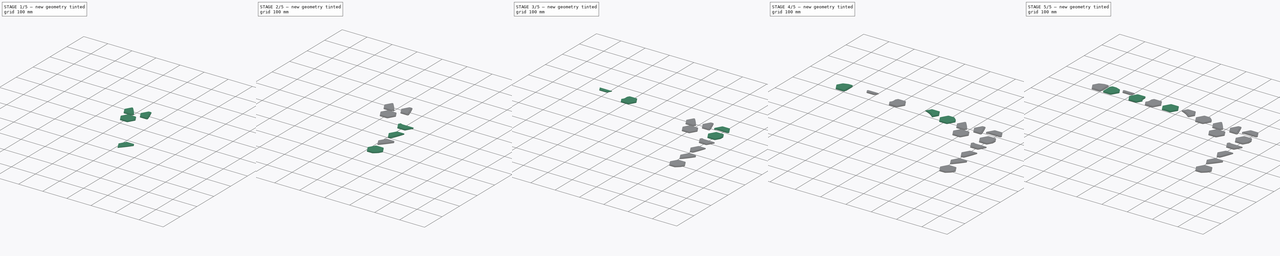
[diagram: build sequence overview — one tinted view per stage of 5, left to right]
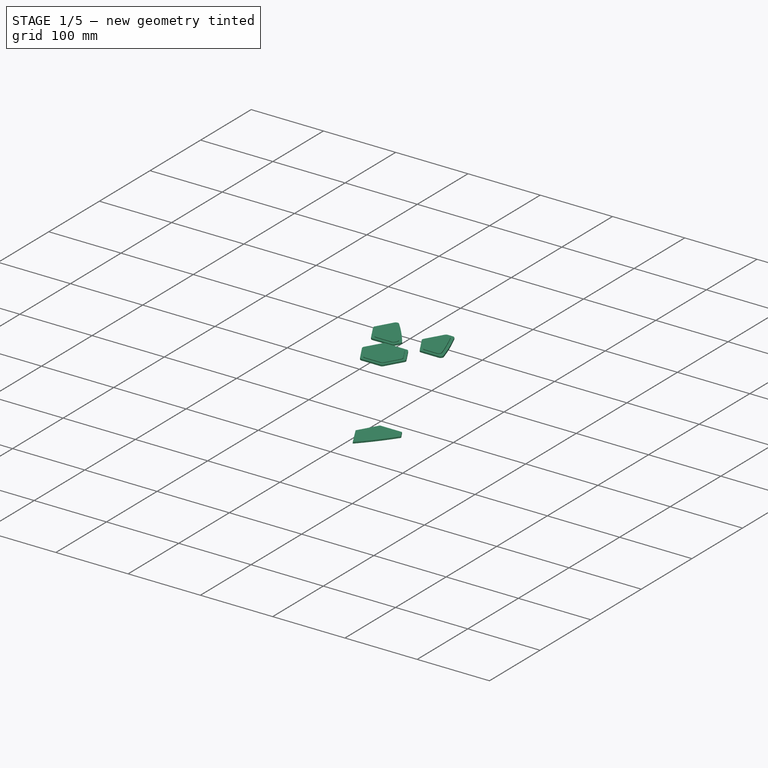
[diagram: stage 1 of 5 — iso view after this stage's code; geometry added in this stage tinted green]
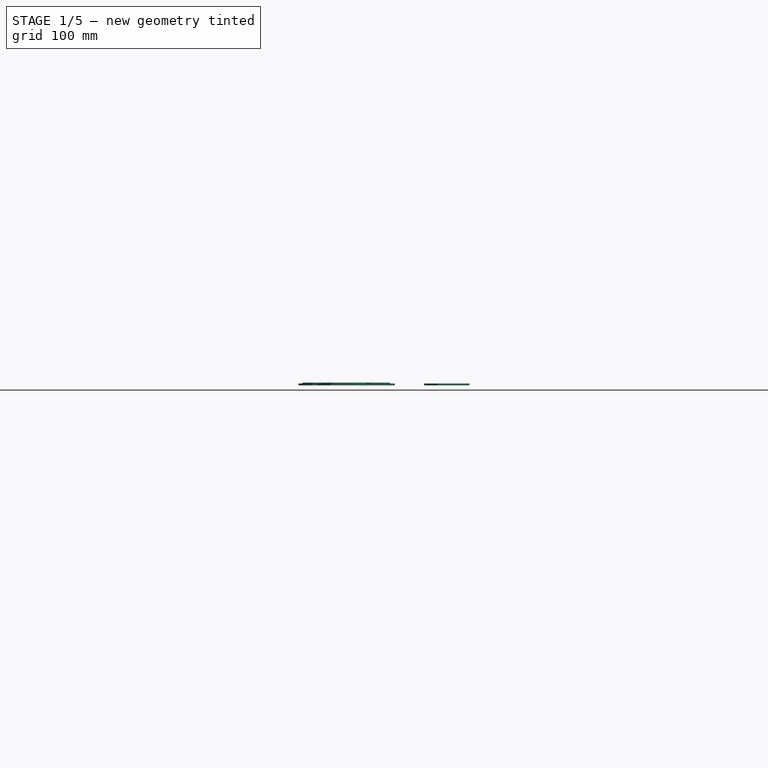
[diagram: stage 1 of 5 — front view after this stage's code; geometry added in this stage tinted green]
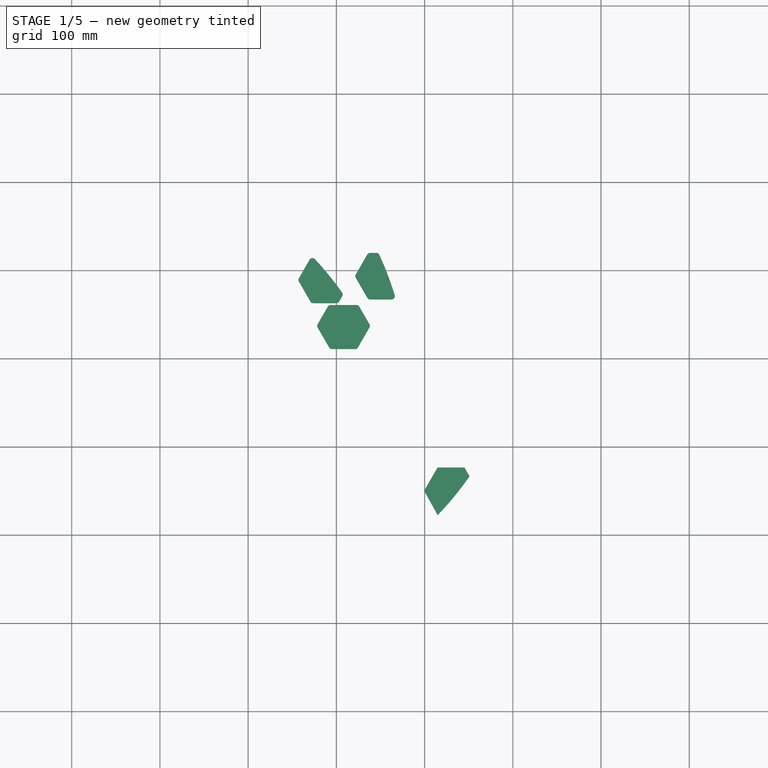
[diagram: stage 1 of 5 — top view after this stage's code; geometry added in this stage tinted green]
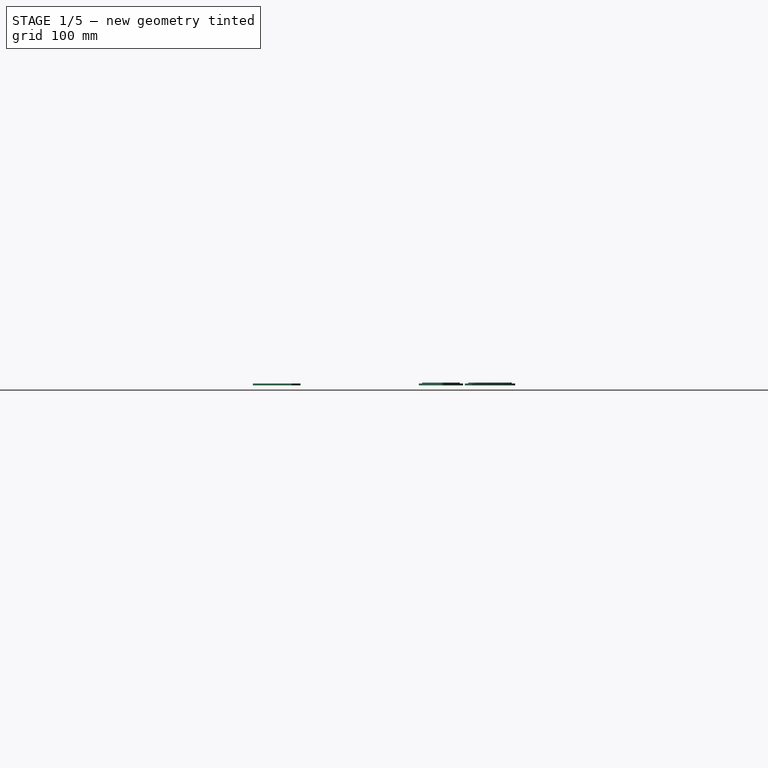
[diagram: stage 1 of 5 — right view after this stage's code; geometry added in this stage tinted green]
FCSTD DOCUMENT  (FreeCAD 0.15R4671 (Git))
Label: odd_inserts
License: All rights reserved
LicenseURL: http://en.wikipedia.org/wiki/All_rights_reserved
objects: Part::Feature×34, Sketcher::SketchObject×34, PartDesign::Pad×34, PartDesign::Fillet×17, App::DocumentObjectGroup×5
note: 153 computed .brp shape members not serialized (recipe doc carries the construction recipe); baked Part::Feature solids carry a one-line shape summary decoded from their .brp

FEATURE [Sketcher::SketchObject] Sketch016
  sketch-geometry (15):
    g0: LineSegment StartX=-92.071 StartY=-26.9549 StartZ=0 EndX=-94.8255 EndY=-23.0595 EndZ=0
    g1: LineSegment StartX=-94.8255 StartY=-23.0595 StartZ=0 EndX=-98.2246 EndY=-18.406 EndZ=0
    g2: LineSegment StartX=-98.2246 StartY=-18.406 StartZ=0 EndX=-101.699 EndY=-13.8001 EndZ=0
    g3: LineSegment StartX=-101.699 StartY=-13.8001 StartZ=0 EndX=-105.247 EndY=-9.24378 EndZ=0
    g4: LineSegment StartX=-105.247 StartY=-9.24378 StartZ=0 EndX=-108.869 EndY=-4.73869 EndZ=0
    g5: LineSegment StartX=-108.869 StartY=-4.73869 StartZ=0 EndX=-112.563 EndY=-0.286614 EndZ=0
    g6: LineSegment StartX=-112.563 StartY=-0.286614 StartZ=0 EndX=-116.327 EndY=4.11074 EndZ=0
    g7: LineSegment StartX=-116.327 StartY=4.11074 StartZ=0 EndX=-120.161 EndY=8.45168 EndZ=0
    g8: LineSegment StartX=-120.161 StartY=8.45168 StartZ=0 EndX=-124.064 EndY=12.7346 EndZ=0
    g9: LineSegment StartX=-124.064 StartY=12.7346 StartZ=0 EndX=-124.294 EndY=12.9799 EndZ=0
    g10: LineSegment StartX=-130.37 StartY=12.2755 StartZ=0 EndX=-143.572 EndY=-10.5915 EndZ=0
    g11: LineSegment StartX=-143.572 StartY=-10.5915 StartZ=0 EndX=-128.335 EndY=-36.9831 EndZ=0
    g12: LineSegment StartX=-128.335 StartY=-36.9831 StartZ=0 EndX=-97.8608 EndY=-36.9831 EndZ=0
    g13: LineSegment StartX=-97.8608 StartY=-36.9831 StartZ=0 EndX=-92.071 EndY=-26.9549 EndZ=0
    g14: ArcOfCircle CenterX=-127.071 CenterY=10.3705 CenterZ=0 NormalX=0 NormalY=0 NormalZ=1 Radius=3.81 StartAngle=0.754431 EndAngle=2.61799
  constraints (17):
    c: DistanceX(g11) = -143.572
    c: DistanceY(g11) = -10.5915
    c: Coincident(g10,g11)
    c: DistanceX(g8) = -124.064
    c: DistanceY(g8) = 12.7346
    c: Coincident(g8,g9)
    c: DistanceX(g7) = -120.161
    c: DistanceY(g7) = 8.45168
    c: Coincident(g8,g7)
    c: Tangent(g10,g14) = -1.5708
    c: Tangent(g9,g14) = -1.5708
    c: Angle(g10,g9) = 1.27803
    c: Angle(g11,g10) = 2.0944
    c: DistanceX(g12) = -128.335
    c: DistanceY(g12) = -36.9831
    c: Coincident(g11,g12)
    c: Radius(g14) = 3.81
FEATURE [PartDesign::Pad] Pad016
  Length = 2
  Length2 = 100
  Sketch = -> Sketch016
  Type = 0
FEATURE [Sketcher::SketchObject] Sketch017
  Placement = pos=(0,0,2) rot=(0,0,1;0rad)
  Support = -> Pad016 [Face17]
  sketch-geometry (14):
    g0: LineSegment StartX=-123.05 StartY=5.85997 StartZ=0 EndX=-123.545 EndY=6.40299 EndZ=0
    g1: LineSegment StartX=-129.661 StartY=5.7419 StartZ=0 EndX=-139.091 EndY=-10.5915 EndZ=0
    g2: LineSegment StartX=-139.091 StartY=-10.5915 StartZ=0 EndX=-126.094 EndY=-33.1021 EndZ=0
    g3: LineSegment StartX=-126.094 StartY=-33.1021 StartZ=0 EndX=-100.102 EndY=-33.1021 EndZ=0
    g4: LineSegment StartX=-100.102 StartY=-33.1021 StartZ=0 EndX=-97.8962 EndY=-29.2824 EndZ=0
    g5: LineSegment StartX=-98.1191 StartY=-25.1301 StartZ=0 EndX=-101.341 EndY=-20.7193 EndZ=0
    g6: LineSegment StartX=-101.341 StartY=-20.7193 StartZ=0 EndX=-104.779 EndY=-16.1612 EndZ=0
    g7: LineSegment StartX=-104.779 StartY=-16.1612 StartZ=0 EndX=-108.291 EndY=-11.6521 EndZ=0
    g8: LineSegment StartX=-108.291 StartY=-11.6521 StartZ=0 EndX=-111.875 EndY=-7.19367 EndZ=0
    g9: LineSegment StartX=-111.875 StartY=-7.19367 StartZ=0 EndX=-115.53 EndY=-2.78774 EndZ=0
    g10: LineSegment StartX=-115.53 StartY=-2.78774 StartZ=0 EndX=-119.256 EndY=1.56402 EndZ=0
    g11: LineSegment StartX=-119.256 StartY=1.56402 StartZ=0 EndX=-123.05 EndY=5.85997 EndZ=0
    g12: ArcOfCircle CenterX=-126.361 CenterY=3.8369 CenterZ=0 NormalX=0 NormalY=0 NormalZ=1 Radius=3.81 StartAngle=0.738953 EndAngle=2.61799
    g13: ArcOfCircle CenterX=-101.196 CenterY=-27.3774 CenterZ=0 NormalX=0 NormalY=0 NormalZ=1 Radius=3.81 StartAngle=5.75959 EndAngle=6.91405
  constraints (25):
    c: DistanceX(g2) = -139.091
    c: DistanceY(g2) = -10.5915
    c: Coincident(g1,g2)
    c: DistanceX(g3) = -126.094
    c: DistanceY(g3) = -33.1021
    c: Coincident(g2,g3)
    c: DistanceX(g11) = -123.05
    c: DistanceY(g11) = 5.85997
    c: Coincident(g0,g11)
    c: Tangent(g1,g12) = -1.5708
    c: Tangent(g0,g12) = -1.5708
    c: Angle(g1,g0) = 1.26255
    c: Angle(g2,g1) = 2.0944
    c: Radius(g12) = 3.81
    c: DistanceX(g4) = -100.102
    c: DistanceY(g4) = -33.1021
    c: Coincident(g3,g4)
    c: DistanceX(g6) = -101.341
    c: DistanceY(g6) = -20.7193
    c: Coincident(g5,g6)
    c: Tangent(g5,g13) = -1.5708
    c: Tangent(g4,g13) = -1.5708
    c: Angle(g5,g4) = 1.98713
    c: Angle(g4,g3) = 2.0944
    c: Radius(g13) = 3.81
FEATURE [Sketcher::SketchObject] Sketch018
  sketch-geometry (15):
    g0: LineSegment StartX=-63.9045 StartY=-32.7295 StartZ=0 EndX=-37.5079 EndY=-32.7295 EndZ=0
    g1: LineSegment StartX=-33.8677 StartY=-27.7947 StartZ=0 EndX=-34.6733 EndY=-25.1876 EndZ=0
    g2: LineSegment StartX=-34.6733 StartY=-25.1876 StartZ=0 EndX=-36.3678 EndY=-19.9745 EndZ=0
    g3: LineSegment StartX=-36.3678 StartY=-19.9745 StartZ=0 EndX=-38.1448 EndY=-14.7689 EndZ=0
    g4: LineSegment StartX=-38.1448 StartY=-14.7689 StartZ=0 EndX=-40.0045 EndY=-9.5726 EndZ=0
    g5: LineSegment StartX=-40.0045 StartY=-9.5726 StartZ=0 EndX=-41.947 EndY=-4.38743 EndZ=0
    g6: LineSegment StartX=-41.947 StartY=-4.38743 StartZ=0 EndX=-43.9725 EndY=0.784693 EndZ=0
    g7: LineSegment StartX=-43.9725 StartY=0.784693 StartZ=0 EndX=-46.081 EndY=5.94184 EndZ=0
    g8: LineSegment StartX=-46.081 StartY=5.94184 StartZ=0 EndX=-48.2725 EndY=11.0821 EndZ=0
    g9: LineSegment StartX=-48.2725 StartY=11.0821 StartZ=0 EndX=-50.5471 EndY=16.2035 EndZ=0
    g10: LineSegment StartX=-50.5471 StartY=16.2035 StartZ=0 EndX=-52.3266 EndY=20.0536 EndZ=0
    g11: LineSegment StartX=-52.3266 StartY=20.0536 StartZ=0 EndX=-63.9045 EndY=20.0536 EndZ=0
    g12: LineSegment StartX=-63.9045 StartY=20.0536 StartZ=0 EndX=-79.1417 EndY=-6.33792 EndZ=0
    g13: LineSegment StartX=-79.1417 StartY=-6.33792 StartZ=0 EndX=-63.9045 EndY=-32.7295 EndZ=0
    g14: ArcOfCircle CenterX=-37.5079 CenterY=-28.9195 CenterZ=0 NormalX=0 NormalY=0 NormalZ=1 Radius=3.81 StartAngle=4.71239 EndAngle=6.58286
  constraints (11):
    c: DistanceX(g13) = -63.9045
    c: DistanceY(g13) = -32.7295
    c: Coincident(g0,g13)
    c: Tangent(g1,g14) = -1.5708
    c: Tangent(g0,g14) = -1.5708
    c: Angle(g1,g0) = 1.27112
    c: Horizontal(g0)
    c: DistanceX(g2) = -34.6733
    c: DistanceY(g2) = -25.1876
    c: Coincident(g1,g2)
    c: Radius(g14) = 3.81
FEATURE [PartDesign::Pad] Pad018
  Length = 2
  Length2 = 100
  Sketch = -> Sketch018
  Type = 0
FEATURE [Sketcher::SketchObject] Sketch027
  Placement = pos=(0,0,2) rot=(0,0,1;0rad)
  Support = -> Pad026 [Face17]
  sketch-geometry (14):
    g0: LineSegment StartX=32.494 StartY=-173.843 StartZ=0 EndX=34.2526 EndY=-168.691 EndZ=0
    g1: LineSegment StartX=34.2526 StartY=-168.691 StartZ=0 EndX=35.9296 EndY=-163.532 EndZ=0
    g2: LineSegment StartX=35.9296 StartY=-163.532 StartZ=0 EndX=36.6984 EndY=-161.044 EndZ=0
    g3: LineSegment StartX=36.6984 StartY=-161.044 StartZ=0 EndX=12.6387 EndY=-161.044 EndZ=0
    g4: LineSegment StartX=12.6387 StartY=-161.044 StartZ=0 EndX=-0.357773 EndY=-183.555 EndZ=0
    g5: LineSegment StartX=-0.357773 StartY=-183.555 StartZ=0 EndX=12.6387 EndY=-206.065 EndZ=0
    g6: LineSegment StartX=12.6387 StartY=-206.065 StartZ=0 EndX=19.4942 EndY=-206.065 EndZ=0
    g7: LineSegment StartX=19.4942 StartY=-206.065 StartZ=0 EndX=20.2203 EndY=-204.494 EndZ=0
    g8: LineSegment StartX=20.2203 StartY=-204.494 StartZ=0 EndX=22.4713 EndY=-199.426 EndZ=0
    g9: LineSegment StartX=22.4713 StartY=-199.426 StartZ=0 EndX=24.6402 EndY=-194.339 EndZ=0
    g10: LineSegment StartX=24.6402 StartY=-194.339 StartZ=0 EndX=26.7268 EndY=-189.235 EndZ=0
    g11: LineSegment StartX=26.7268 StartY=-189.235 StartZ=0 EndX=28.7313 EndY=-184.117 EndZ=0
    g12: LineSegment StartX=28.7313 StartY=-184.117 StartZ=0 EndX=30.6536 EndY=-178.985 EndZ=0
    g13: LineSegment StartX=30.6536 StartY=-178.985 StartZ=0 EndX=32.494 EndY=-173.843 EndZ=0
FEATURE [PartDesign::Pad] Pad028
  Length = 2
  Length2 = 100
  Sketch = -> Sketch028
  Type = 0
FEATURE [PartDesign::Pad] Pad034
  Length = 1
  Length2 = 100
  Sketch = -> Sketch017
  Type = 0
FEATURE [PartDesign::Fillet] Fillet019  label="insert10"
  Base = -> Pad034 [Edge49,Edge77,Edge75,Edge5,Edge1,Edge59,Edge79]
  Radius = 3.81
FEATURE [PartDesign::Pad] Pad035
  Length = 1
  Length2 = 100
  Sketch = -> Sketch019
  Type = 0
FEATURE [PartDesign::Fillet] Fillet020  label="insert11"
  Base = -> Pad035 [Edge1,Edge71,Edge5,Edge73,Edge49,Edge75,Edge59]
  Radius = 3.81
FEATURE [Part::Feature] Polyline032
  Placement = pos=(-76.2,-76.2,0) rot=(0,0,1;0rad)
  shape: bbox 52.28 x 42.57 x 2e-07 mm, 1 faces, 0 solids (baked)
FEATURE [App::DocumentObjectGroup] LAYER_8001  label="LAYER_009"
  Group = -> [Polyline032]
FEATURE [Part::Feature] Polyline033
  Placement = pos=(-76.2,-76.2,0) rot=(0,0,1;0rad)
  shape: bbox 60.95 x 50.08 x 2e-07 mm, 1 faces, 0 solids (baked)
FEATURE [App::DocumentObjectGroup] LAYER_8002  label="LAYER_010"
  Group = -> [Polyline033]
FEATURE [App::DocumentObjectGroup] last_odd_insert
  Group = -> [LAYER_8001,LAYER_8002]
FEATURE [Sketcher::SketchObject] Sketch032
  sketch-geometry (6):
    g0: LineSegment StartX=-107.114 StartY=-89.0884 StartZ=0 EndX=-76.6398 EndY=-89.0884 EndZ=0
    g1: LineSegment StartX=-76.6398 StartY=-89.0884 StartZ=0 EndX=-61.4026 EndY=-62.6969 EndZ=0
    g2: LineSegment StartX=-61.4026 StartY=-62.6969 StartZ=0 EndX=-75.0783 EndY=-39.0099 EndZ=0
    g3: LineSegment StartX=-75.0783 StartY=-39.0099 StartZ=0 EndX=-108.676 EndY=-39.0099 EndZ=0
    g4: LineSegment StartX=-108.676 StartY=-39.0099 StartZ=0 EndX=-122.351 EndY=-62.6969 EndZ=0
    g5: LineSegment StartX=-122.351 StartY=-62.6969 StartZ=0 EndX=-107.114 EndY=-89.0884 EndZ=0
FEATURE [PartDesign::Pad] Pad036
  Length = 2
  Length2 = 100
  Sketch = -> Sketch032
  Type = 0
FEATURE [Sketcher::SketchObject] Sketch033
  Placement = pos=(0,0,2) rot=(0,0,1;0rad)
  Support = -> Pad036 [Face8]
  sketch-geometry (6):
    g0: LineSegment StartX=-104.947 StartY=-85.3345 StartZ=0 EndX=-78.8071 EndY=-85.3345 EndZ=0
    g1: LineSegment StartX=-78.8071 StartY=-85.3345 StartZ=0 EndX=-65.7373 EndY=-62.6969 EndZ=0
    g2: LineSegment StartX=-65.7373 StartY=-62.6969 StartZ=0 EndX=-77.2456 EndY=-42.7639 EndZ=0
    g3: LineSegment StartX=-77.2456 StartY=-42.7639 StartZ=0 EndX=-106.508 EndY=-42.7639 EndZ=0
    g4: LineSegment StartX=-106.508 StartY=-42.7639 StartZ=0 EndX=-118.017 EndY=-62.6969 EndZ=0
    g5: LineSegment StartX=-118.017 StartY=-62.6969 StartZ=0 EndX=-104.947 EndY=-85.3345 EndZ=0
FEATURE [PartDesign::Pad] Pad037
  Length = 1
  Length2 = 100
  Sketch = -> Sketch033
  Type = 0
FEATURE [PartDesign::Fillet] Fillet021  label="insert18"
  Base = -> Pad037 [Edge2,Edge34,Edge1,Edge27,Edge5,Edge25,Edge8,Edge32,Edge24,Edge30,Edge23,Edge28]
  Radius = 3.81
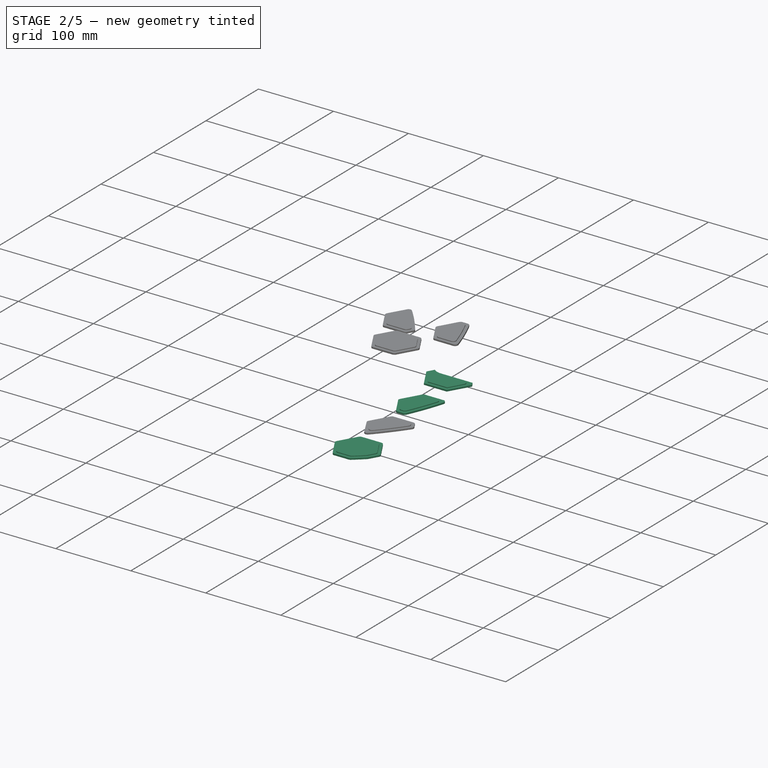
[diagram: stage 2 of 5 — iso view after this stage's code; geometry added in this stage tinted green]
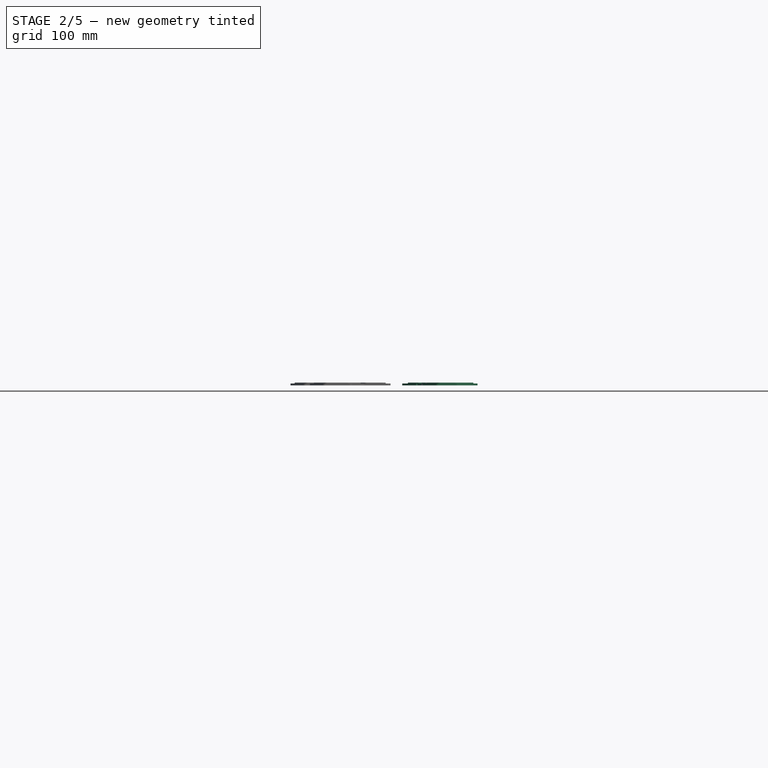
[diagram: stage 2 of 5 — front view after this stage's code; geometry added in this stage tinted green]
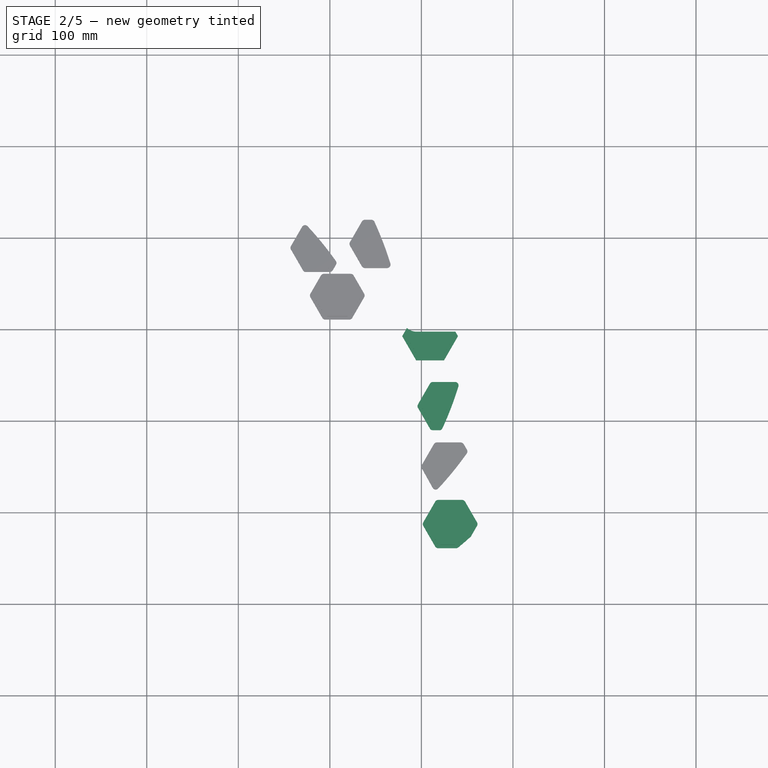
[diagram: stage 2 of 5 — top view after this stage's code; geometry added in this stage tinted green]
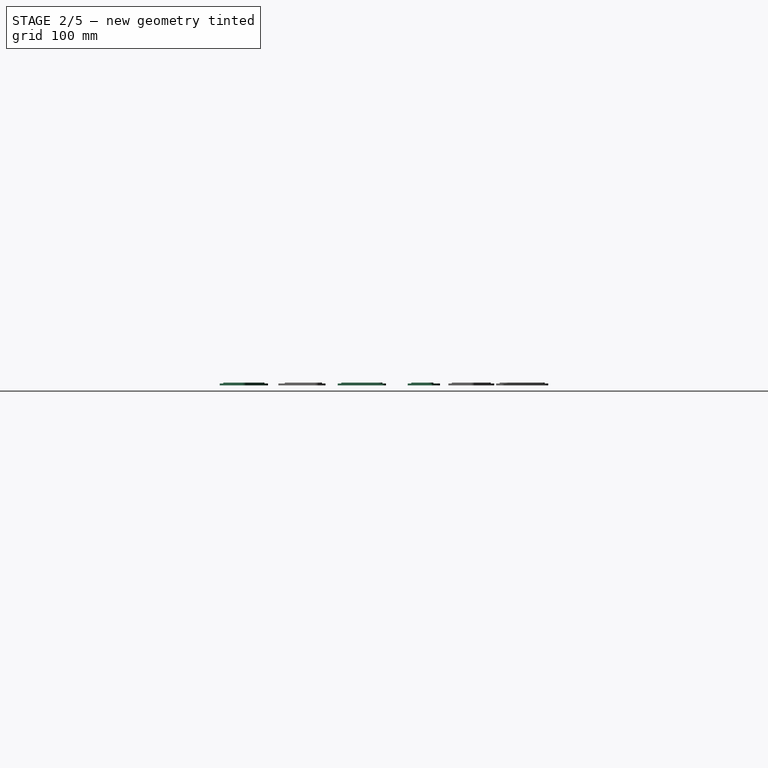
[diagram: stage 2 of 5 — right view after this stage's code; geometry added in this stage tinted green]
FEATURE [Sketcher::SketchObject] Sketch024
  sketch-geometry (7):
    g0: LineSegment StartX=-15.82 StartY=-98.2064 StartZ=0 EndX=-20.9679 EndY=-107.123 EndZ=0
    g1: LineSegment StartX=-20.9679 StartY=-107.123 StartZ=0 EndX=-5.7307 EndY=-133.514 EndZ=0
    g2: LineSegment StartX=-5.7307 StartY=-133.514 StartZ=0 EndX=24.7437 EndY=-133.514 EndZ=0
    g3: LineSegment StartX=24.7437 StartY=-133.514 StartZ=0 EndX=39.9808 EndY=-107.123 EndZ=0
    g4: LineSegment StartX=39.9808 StartY=-107.123 StartZ=0 EndX=37.1621 EndY=-102.241 EndZ=0
    g5: LineSegment StartX=37.1621 StartY=-102.241 StartZ=0 EndX=-4.98368 EndY=-102.241 EndZ=0
    g6: ArcOfCircle CenterX=-4.97275 CenterY=-85.6406 CenterZ=0 NormalX=0 NormalY=0 NormalZ=1 Radius=16.6 StartAngle=4.00026 EndAngle=4.71173
FEATURE [PartDesign::Pad] Pad024
  Length = 2
  Length2 = 100
  Sketch = -> Sketch024
  Type = 0
FEATURE [Sketcher::SketchObject] Sketch025
  Placement = pos=(0,0,2) rot=(0,0,1;0rad)
  Support = -> Pad024 [Face9]
  sketch-geometry (7):
    g0: LineSegment StartX=-14.1871 StartY=-111.106 StartZ=0 EndX=-3.49001 EndY=-129.633 EndZ=0
    g1: LineSegment StartX=-3.49001 StartY=-129.633 StartZ=0 EndX=22.503 EndY=-129.633 EndZ=0
    g2: LineSegment StartX=22.503 StartY=-129.633 StartZ=0 EndX=32.778 EndY=-111.837 EndZ=0
    g3: LineSegment StartX=29.4784 StartY=-106.122 StartZ=0 EndX=-5.00774 EndY=-106.122 EndZ=0
    g4: ArcOfCircle CenterX=29.4784 CenterY=-109.932 CenterZ=0 NormalX=0 NormalY=0 NormalZ=1 Radius=3.81 StartAngle=5.75959 EndAngle=7.85398
    g5: ArcOfCircle CenterX=-10.8876 CenterY=-109.201 CenterZ=0 NormalX=0 NormalY=0 NormalZ=1 Radius=3.81 StartAngle=1.32485 EndAngle=3.66519
    g6: ArcOfCircle CenterX=-4.97406 CenterY=-85.6515 CenterZ=0 NormalX=0 NormalY=0 NormalZ=1 Radius=20.4701 StartAngle=4.46635 EndAngle=4.71074
  constraints (22):
    c: DistanceY(g3) = -106.122
    c: DistanceX(g1) = -3.49001
    c: DistanceY(g1) = -129.633
    c: Coincident(g0,g1)
    c: DistanceX(g2) = 22.503
    c: DistanceY(g2) = -129.633
    c: Coincident(g1,g2)
    c: DistanceX(g3) = -5.00774
    c: Tangent(g3,g4) = -1.5708
    c: Tangent(g2,g4) = -1.5708
    c: Angle(g3,g2) = 1.0472
    c: Angle(g0,g3) = 1.0472
    c: Radius(g4) = 3.81
    c: Tangent(g0,g5)
    c: Radius(g5) = 3.81
    c: Coincident(g0,g5)
    c: DistanceX(g0) = -14.1871
    c: Coincident(g6,g3)
    c: Coincident(g6,g5)
    c: DistanceX(g5) = -9.95992
    c: DistanceY(g5) = -105.505
    c: Radius(g6) = 20.4701
FEATURE [PartDesign::Pad] Pad025
  Length = 1
  Length2 = 100
  Sketch = -> Sketch025
  Type = 0
FEATURE [Sketcher::SketchObject] Sketch026
  sketch-geometry (15):
    g0: LineSegment StartX=32.3555 StartY=-185.505 StartZ=0 EndX=34.298 EndY=-180.32 EndZ=0
    g1: LineSegment StartX=34.298 StartY=-180.32 StartZ=0 EndX=36.1577 EndY=-175.124 EndZ=0
    g2: LineSegment StartX=36.1577 StartY=-175.124 StartZ=0 EndX=37.9347 EndY=-169.918 EndZ=0
    g3: LineSegment StartX=37.9347 StartY=-169.918 StartZ=0 EndX=39.6293 EndY=-164.705 EndZ=0
    g4: LineSegment StartX=39.6293 StartY=-164.705 StartZ=0 EndX=40.4348 EndY=-162.098 EndZ=0
    g5: LineSegment StartX=36.7946 StartY=-157.163 StartZ=0 EndX=10.398 EndY=-157.163 EndZ=0
    g6: LineSegment StartX=10.398 StartY=-157.163 StartZ=0 EndX=-4.83916 EndY=-183.555 EndZ=0
    g7: LineSegment StartX=-4.83916 StartY=-183.555 StartZ=0 EndX=10.398 EndY=-209.946 EndZ=0
    g8: LineSegment StartX=10.398 StartY=-209.946 StartZ=0 EndX=21.9759 EndY=-209.946 EndZ=0
    g9: LineSegment StartX=21.9759 StartY=-209.946 StartZ=0 EndX=23.7554 EndY=-206.096 EndZ=0
    g10: LineSegment StartX=23.7554 StartY=-206.096 StartZ=0 EndX=26.03 EndY=-200.975 EndZ=0
    g11: LineSegment StartX=26.03 StartY=-200.975 StartZ=0 EndX=28.2216 EndY=-195.834 EndZ=0
    g12: LineSegment StartX=28.2216 StartY=-195.834 StartZ=0 EndX=30.3301 EndY=-190.677 EndZ=0
    g13: LineSegment StartX=30.3301 StartY=-190.677 StartZ=0 EndX=32.3555 EndY=-185.505 EndZ=0
    g14: ArcOfCircle CenterX=36.7946 CenterY=-160.973 CenterZ=0 NormalX=0 NormalY=0 NormalZ=1 Radius=3.81 StartAngle=5.98351 EndAngle=7.85398
  constraints (17):
    c: DistanceX(g6) = 10.398
    c: DistanceY(g6) = -157.163
    c: Coincident(g5,g6)
    c: DistanceX(g3) = 39.6293
    c: DistanceY(g3) = -164.705
    c: Coincident(g4,g3)
    c: DistanceX(g3) = 37.9347
    c: DistanceY(g3) = -169.918
    c: Coincident(g2,g3)
    c: Tangent(g5,g14) = -1.5708
    c: Tangent(g4,g14) = -1.5708
    c: Angle(g6,g5) = 2.0944
    c: Angle(g5,g4) = 1.27112
    c: DistanceX(g7) = -4.83916
    c: DistanceY(g7) = -183.555
    c: Coincident(g6,g7)
    c: Radius(g14) = 3.81
FEATURE [Sketcher::SketchObject] Sketch028
  sketch-geometry (14):
    g0: LineSegment StartX=41.3376 StartY=-246.429 StartZ=0 EndX=44.8119 EndY=-241.823 EndZ=0
    g1: LineSegment StartX=44.8119 StartY=-241.823 StartZ=0 EndX=48.211 EndY=-237.169 EndZ=0
    g2: LineSegment StartX=48.211 StartY=-237.169 StartZ=0 EndX=50.9655 EndY=-233.274 EndZ=0
    g3: LineSegment StartX=50.9655 StartY=-233.274 StartZ=0 EndX=45.1757 EndY=-223.246 EndZ=0
    g4: LineSegment StartX=45.1757 StartY=-223.246 StartZ=0 EndX=14.7014 EndY=-223.246 EndZ=0
    g5: LineSegment StartX=14.7014 StartY=-223.246 StartZ=0 EndX=-0.535815 EndY=-249.637 EndZ=0
    g6: LineSegment StartX=-0.535815 StartY=-249.637 StartZ=0 EndX=14.795 EndY=-277.26 EndZ=0
    g7: LineSegment StartX=14.795 StartY=-277.26 StartZ=0 EndX=18.9728 EndY=-272.963 EndZ=0
    g8: LineSegment StartX=18.9728 StartY=-272.963 StartZ=0 EndX=22.8752 EndY=-268.681 EndZ=0
    g9: LineSegment StartX=22.8752 StartY=-268.681 StartZ=0 EndX=26.7093 EndY=-264.34 EndZ=0
    g10: LineSegment StartX=26.7093 StartY=-264.34 StartZ=0 EndX=30.4738 EndY=-259.942 EndZ=0
    g11: LineSegment StartX=30.4738 StartY=-259.942 StartZ=0 EndX=34.1675 EndY=-255.49 EndZ=0
    g12: LineSegment StartX=34.1675 StartY=-255.49 StartZ=0 EndX=37.7891 EndY=-250.985 EndZ=0
    g13: LineSegment StartX=37.7891 StartY=-250.985 StartZ=0 EndX=41.3376 EndY=-246.429 EndZ=0
  constraints (8):
    c: Angle(g7,g6) = 1.27803
    c: Coincident(g6,g7)
    c: DistanceX(g8) = 18.9728
    c: DistanceY(g8) = -272.963
    c: Coincident(g7,g8)
    c: DistanceX(g5) = -0.535815
    c: DistanceY(g5) = -249.637
    c: Coincident(g6,g5)
FEATURE [Sketcher::SketchObject] Sketch030
  sketch-geometry (11):
    g0: LineSegment StartX=39.1646 StartY=-338.851 StartZ=0 EndX=39.6338 EndY=-338.474 EndZ=0
    g1: LineSegment StartX=39.6338 StartY=-338.474 StartZ=0 EndX=44.0858 EndY=-334.78 EndZ=0
    g2: LineSegment StartX=44.0858 StartY=-334.78 StartZ=0 EndX=48.4832 EndY=-331.016 EndZ=0
    g3: LineSegment StartX=48.4832 StartY=-331.016 StartZ=0 EndX=52.8241 EndY=-327.182 EndZ=0
    g4: LineSegment StartX=52.8241 StartY=-327.182 StartZ=0 EndX=54.0107 EndY=-326.101 EndZ=0
    g5: LineSegment StartX=54.0107 StartY=-326.101 StartZ=0 EndX=61.8863 EndY=-312.46 EndZ=0
    g6: LineSegment StartX=61.8863 StartY=-312.46 StartZ=0 EndX=46.6491 EndY=-286.068 EndZ=0
    g7: LineSegment StartX=46.6491 StartY=-286.068 StartZ=0 EndX=16.1748 EndY=-286.068 EndZ=0
    g8: LineSegment StartX=16.1748 StartY=-286.068 StartZ=0 EndX=0.937587 EndY=-312.46 EndZ=0
    g9: LineSegment StartX=0.937587 StartY=-312.46 StartZ=0 EndX=16.1748 EndY=-338.851 EndZ=0
    g10: LineSegment StartX=16.1748 StartY=-338.851 StartZ=0 EndX=39.1646 EndY=-338.851 EndZ=0
FEATURE [PartDesign::Pad] Pad026
  Length = 2
  Length2 = 100
  Sketch = -> Sketch026
  Type = 0
FEATURE [Sketcher::SketchObject] Sketch029
  Placement = pos=(0,0,2) rot=(0,0,1;0rad)
  Support = -> Pad028 [Face16]
  sketch-geometry (14):
    g0: LineSegment StartX=31.1615 StartY=-253.035 StartZ=0 EndX=34.7456 EndY=-248.577 EndZ=0
    g1: LineSegment StartX=34.7456 StartY=-248.577 StartZ=0 EndX=38.2573 EndY=-244.068 EndZ=0
    g2: LineSegment StartX=38.2573 StartY=-244.068 StartZ=0 EndX=41.6956 EndY=-239.51 EndZ=0
    g3: LineSegment StartX=41.6956 StartY=-239.51 StartZ=0 EndX=45.0595 EndY=-234.904 EndZ=0
    g4: LineSegment StartX=45.0595 StartY=-234.904 StartZ=0 EndX=46.3619 EndY=-233.062 EndZ=0
    g5: LineSegment StartX=46.3619 StartY=-233.062 StartZ=0 EndX=42.935 EndY=-227.127 EndZ=0
    g6: LineSegment StartX=42.935 StartY=-227.127 StartZ=0 EndX=16.9421 EndY=-227.127 EndZ=0
    g7: LineSegment StartX=16.9421 StartY=-227.127 StartZ=0 EndX=3.94557 EndY=-249.637 EndZ=0
    g8: LineSegment StartX=3.94557 StartY=-249.637 StartZ=0 EndX=15.9797 EndY=-270.481 EndZ=0
    g9: LineSegment StartX=15.9797 StartY=-270.481 StartZ=0 EndX=16.1243 EndY=-270.327 EndZ=0
    g10: LineSegment StartX=16.1243 StartY=-270.327 StartZ=0 EndX=19.9863 EndY=-266.089 EndZ=0
    g11: LineSegment StartX=19.9863 StartY=-266.089 StartZ=0 EndX=23.7806 EndY=-261.793 EndZ=0
    g12: LineSegment StartX=23.7806 StartY=-261.793 StartZ=0 EndX=27.5061 EndY=-257.441 EndZ=0
    g13: LineSegment StartX=27.5061 StartY=-257.441 StartZ=0 EndX=31.1615 EndY=-253.035 EndZ=0
FEATURE [PartDesign::Pad] Pad030
  Length = 2
  Length2 = 100
  Sketch = -> Sketch030
  Type = 0
FEATURE [Sketcher::SketchObject] Sketch031
  Placement = pos=(0,0,2) rot=(0,0,1;0rad)
  Support = -> Pad030 [Face13]
  sketch-geometry (10):
    g0: LineSegment StartX=57.4049 StartY=-312.46 StartZ=0 EndX=44.4084 EndY=-289.949 EndZ=0
    g1: LineSegment StartX=44.4084 StartY=-289.949 StartZ=0 EndX=18.4155 EndY=-289.949 EndZ=0
    g2: LineSegment StartX=18.4155 StartY=-289.949 StartZ=0 EndX=5.41897 EndY=-312.46 EndZ=0
    g3: LineSegment StartX=5.41897 StartY=-312.46 StartZ=0 EndX=18.4155 EndY=-334.97 EndZ=0
    g4: LineSegment StartX=18.4155 StartY=-334.97 StartZ=0 EndX=37.7788 EndY=-334.97 EndZ=0
    g5: LineSegment StartX=37.7788 StartY=-334.97 StartZ=0 EndX=41.5847 EndY=-331.813 EndZ=0
    g6: LineSegment StartX=41.5847 StartY=-331.813 StartZ=0 EndX=45.9365 EndY=-328.087 EndZ=0
    g7: LineSegment StartX=45.9365 StartY=-328.087 StartZ=0 EndX=50.2324 EndY=-324.293 EndZ=0
    g8: LineSegment StartX=50.2324 StartY=-324.293 StartZ=0 EndX=50.9511 EndY=-323.638 EndZ=0
    g9: LineSegment StartX=50.9511 StartY=-323.638 StartZ=0 EndX=57.4049 EndY=-312.46 EndZ=0
FEATURE [PartDesign::Pad] Pad031
  Length = 1
  Length2 = 100
  Sketch = -> Sketch031
  Type = 0
FEATURE [PartDesign::Fillet] Fillet016  label="insert17"
  Base = -> Pad031 [Edge5,Edge55,Edge1,Edge53,Edge40,Edge44,Edge41,Edge46,Edge42,Edge61,Edge43,Edge59,Edge37,Edge57]
  Radius = 3.81
FEATURE [PartDesign::Pad] Pad032
  Length = 1
  Length2 = 100
  Sketch = -> Sketch027
  Type = 0
FEATURE [PartDesign::Fillet] Fillet017  label="insert15"
  Base = -> Pad032 [Edge54,Edge77,Edge75,Edge55,Edge56,Edge73,Edge71,Edge57,Edge79]
  Radius = 3.81
FEATURE [PartDesign::Pad] Pad033
  Length = 1
  Length2 = 100
  Sketch = -> Sketch029
  Type = 0
FEATURE [PartDesign::Fillet] Fillet018  label="insert16"
  Base = -> Pad033 [Edge52,Edge80,Edge51,Edge82,Edge48,Edge60,Edge57,Edge49,Edge50,Edge59]
  Radius = 3.81
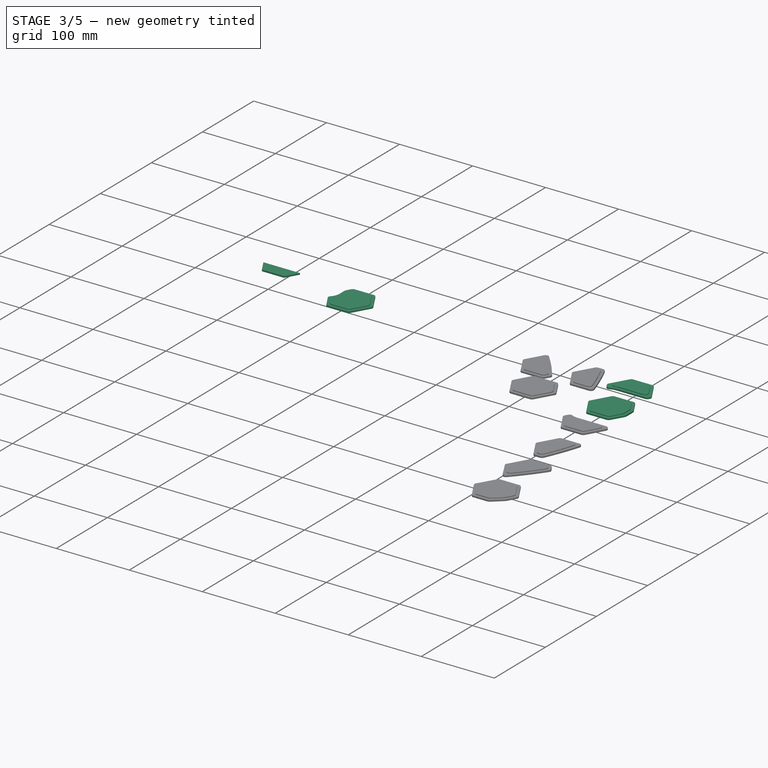
[diagram: stage 3 of 5 — iso view after this stage's code; geometry added in this stage tinted green]
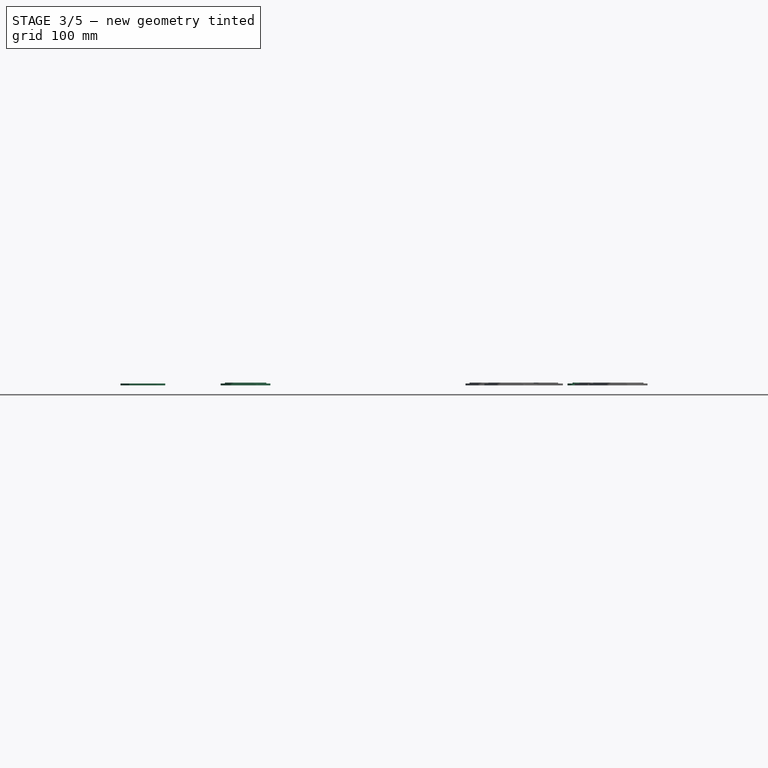
[diagram: stage 3 of 5 — front view after this stage's code; geometry added in this stage tinted green]
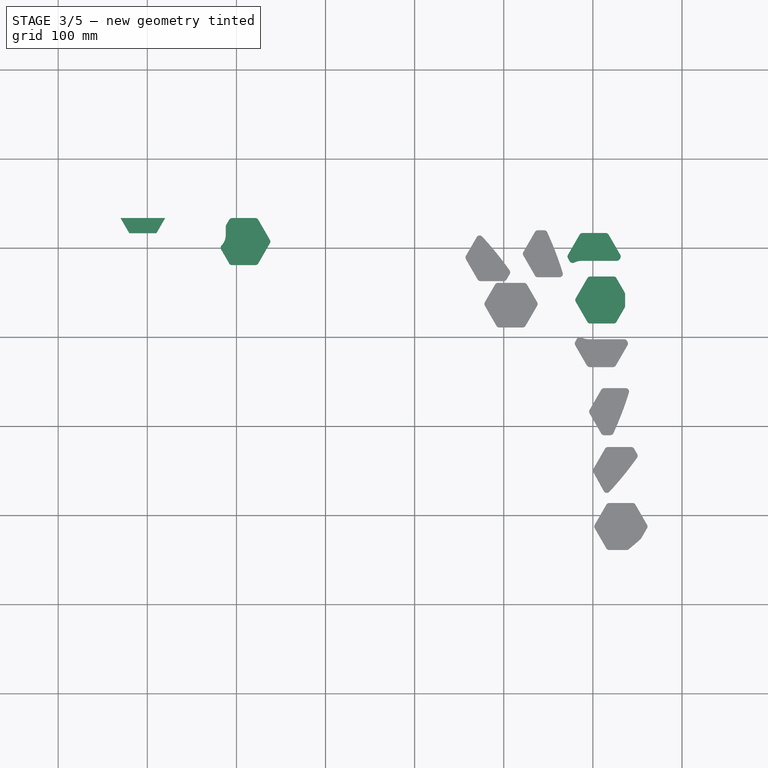
[diagram: stage 3 of 5 — top view after this stage's code; geometry added in this stage tinted green]
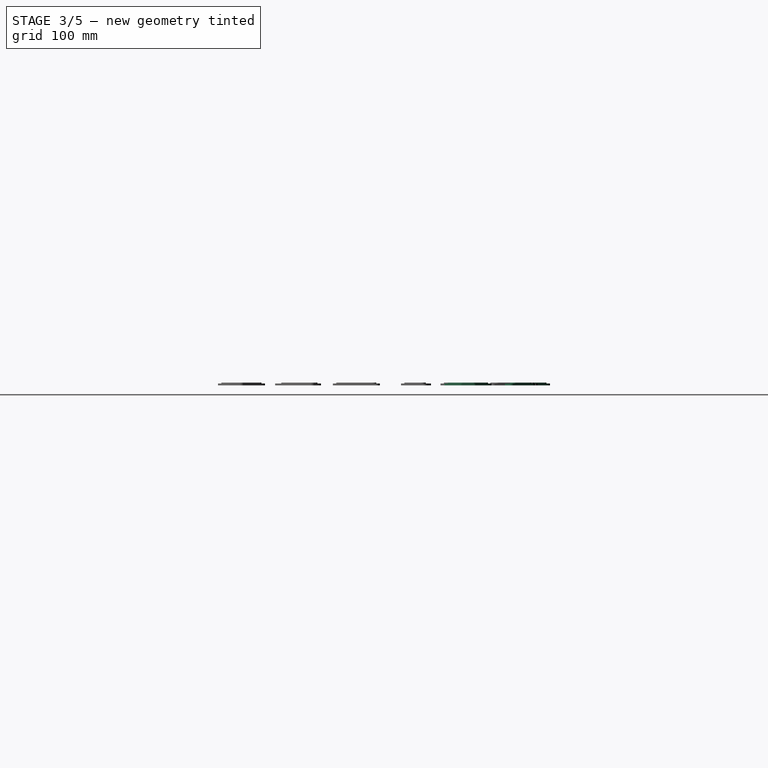
[diagram: stage 3 of 5 — right view after this stage's code; geometry added in this stage tinted green]
FEATURE [Sketcher::SketchObject] Sketch012
  sketch-geometry (4):
    g0: LineSegment StartX=-489.755 StartY=16.7202 StartZ=0 EndX=-479.892 EndY=33.8032 EndZ=0
    g1: LineSegment StartX=-479.892 StartY=33.8032 StartZ=0 EndX=-530.093 EndY=33.8032 EndZ=0
    g2: LineSegment StartX=-530.093 StartY=33.8032 StartZ=0 EndX=-520.23 EndY=16.7202 EndZ=0
    g3: LineSegment StartX=-520.23 StartY=16.7202 StartZ=0 EndX=-489.755 EndY=16.7202 EndZ=0
FEATURE [PartDesign::Pad] Pad012
  Length = 2
  Length2 = 100
  Sketch = -> Sketch012
  Type = 0
FEATURE [Sketcher::SketchObject] Sketch014
  sketch-geometry (8):
    g0: LineSegment StartX=-376.564 StartY=-19.0723 StartZ=0 EndX=-361.327 EndY=7.31924 EndZ=0
    g1: LineSegment StartX=-361.327 StartY=7.31924 StartZ=0 EndX=-376.564 EndY=33.7108 EndZ=0
    g2: LineSegment StartX=-376.564 StartY=33.7108 StartZ=0 EndX=-407.038 EndY=33.7108 EndZ=0
    g3: LineSegment StartX=-407.038 StartY=33.7108 StartZ=0 EndX=-411.997 EndY=25.1227 EndZ=0
    g4: LineSegment StartX=-411.997 StartY=25.1227 StartZ=0 EndX=-411.997 EndY=14.6146 EndZ=0
    g5: ArcOfCircle CenterX=-428.599 CenterY=14.6215 CenterZ=0 NormalX=0 NormalY=0 NormalZ=1 Radius=16.602 StartAngle=5.34613 EndAngle=6.28277
    g6: LineSegment StartX=-418.768 StartY=1.24333 StartZ=0 EndX=-407.038 EndY=-19.0723 EndZ=0
    g7: LineSegment StartX=-407.038 StartY=-19.0723 StartZ=0 EndX=-376.564 EndY=-19.0723 EndZ=0
FEATURE [PartDesign::Pad] Pad014
  Length = 2
  Length2 = 100
  Sketch = -> Sketch014
  Type = 0
FEATURE [Sketcher::SketchObject] Sketch015
  Placement = pos=(0,0,2) rot=(0,0,1;0rad)
  Support = -> Pad014 [Face10]
  sketch-geometry (9):
    g0: LineSegment StartX=-404.798 StartY=29.8298 StartZ=0 EndX=-408.116 EndY=24.0828 EndZ=0
    g1: LineSegment StartX=-408.116 StartY=24.0828 StartZ=0 EndX=-408.116 EndY=14.6146 EndZ=0
    g2: LineSegment StartX=-408.116 StartY=14.6146 StartZ=0 EndX=-408.116 EndY=14.613 EndZ=0
    g3: ArcOfCircle CenterX=-428.601 CenterY=14.6219 CenterZ=0 NormalX=0 NormalY=0 NormalZ=1 Radius=20.4851 StartAngle=5.51834 EndAngle=6.28275
    g4: LineSegment StartX=-413.821 StartY=0.43751 StartZ=0 EndX=-404.798 EndY=-15.1913 EndZ=0
    g5: LineSegment StartX=-404.798 StartY=-15.1913 StartZ=0 EndX=-378.805 EndY=-15.1913 EndZ=0
    g6: LineSegment StartX=-378.805 StartY=-15.1913 StartZ=0 EndX=-365.808 EndY=7.31924 EndZ=0
    g7: LineSegment StartX=-365.808 StartY=7.31924 StartZ=0 EndX=-378.805 EndY=29.8298 EndZ=0
    g8: LineSegment StartX=-378.805 StartY=29.8298 StartZ=0 EndX=-404.798 EndY=29.8298 EndZ=0
FEATURE [PartDesign::Pad] Pad015
  Length = 1
  Length2 = 100
  Sketch = -> Sketch015
  Type = 0
FEATURE [PartDesign::Fillet] Fillet007  label="insert6"
  Base = -> Pad015 [Edge5,Edge43,Edge1,Edge41,Edge2,Edge39,Edge45,Edge30,Edge32,Edge36,Edge31,Edge34,Edge8,Edge37]
  Radius = 3.81
FEATURE [Sketcher::SketchObject] Sketch019
  Placement = pos=(0,0,2) rot=(0,0,1;0rad)
  Support = -> Pad018 [Face17]
  sketch-geometry (14):
    g0: LineSegment StartX=-61.6638 StartY=-28.8485 StartZ=0 EndX=-42.8089 EndY=-28.8485 EndZ=0
    g1: LineSegment StartX=-39.1855 StartY=-23.8607 StartZ=0 EndX=-40.0499 EndY=-21.2014 EndZ=0
    g2: LineSegment StartX=-40.0499 StartY=-21.2014 StartZ=0 EndX=-41.8085 EndY=-16.0497 EndZ=0
    g3: LineSegment StartX=-41.8085 StartY=-16.0497 StartZ=0 EndX=-43.6489 EndY=-10.9073 EndZ=0
    g4: LineSegment StartX=-43.6489 StartY=-10.9073 StartZ=0 EndX=-45.5712 EndY=-5.77585 EndZ=0
    g5: LineSegment StartX=-45.5712 StartY=-5.77585 StartZ=0 EndX=-47.5757 EndY=-0.657351 EndZ=0
    g6: LineSegment StartX=-47.5757 StartY=-0.657351 StartZ=0 EndX=-49.6624 EndY=4.44634 EndZ=0
    g7: LineSegment StartX=-49.6624 StartY=4.44634 StartZ=0 EndX=-51.8312 EndY=9.53331 EndZ=0
    g8: LineSegment StartX=-51.8312 StartY=9.53331 StartZ=0 EndX=-53.7747 EndY=13.9092 EndZ=0
    g9: LineSegment StartX=-57.2567 StartY=16.1727 StartZ=0 EndX=-61.6638 EndY=16.1727 EndZ=0
    g10: LineSegment StartX=-61.6638 StartY=16.1727 StartZ=0 EndX=-74.6603 EndY=-6.33792 EndZ=0
    g11: LineSegment StartX=-74.6603 StartY=-6.33792 StartZ=0 EndX=-61.6638 EndY=-28.8485 EndZ=0
    g12: ArcOfCircle CenterX=-57.2567 CenterY=12.3627 CenterZ=0 NormalX=0 NormalY=0 NormalZ=1 Radius=3.81 StartAngle=0.417971 EndAngle=1.5708
    g13: ArcOfCircle CenterX=-42.8089 CenterY=-25.0385 CenterZ=0 NormalX=0 NormalY=0 NormalZ=1 Radius=3.81 StartAngle=4.71239 EndAngle=6.59748
  constraints (22):
    c: DistanceX(g10) = -61.6638
    c: DistanceY(g10) = 16.1727
    c: Coincident(g9,g10)
    c: DistanceX(g7) = -51.8312
    c: DistanceY(g7) = 9.53331
    c: Coincident(g8,g7)
    c: Tangent(g9,g12) = -1.5708
    c: Tangent(g8,g12) = -1.5708
    c: Horizontal(g9)
    c: Angle(g9,g8) = 1.98877
    c: Radius(g12) = 3.81
    c: DistanceX(g11) = -61.6638
    c: DistanceY(g11) = -28.8485
    c: Coincident(g0,g11)
    c: DistanceX(g2) = -40.0499
    c: DistanceY(g2) = -21.2014
    c: Coincident(g1,g2)
    c: Horizontal(g0)
    c: Tangent(g0,g13) = -1.5708
    c: Tangent(g1,g13) = -1.5708
    c: Angle(g1,g0) = 1.2565
    c: Radius(g13) = 3.81
FEATURE [Sketcher::SketchObject] Sketch020
  sketch-geometry (7):
    g0: ArcOfCircle CenterX=-13.0993 CenterY=-30.9524 CenterZ=0 NormalX=0 NormalY=0 NormalZ=1 Radius=16.5999 StartAngle=1.57145 EndAngle=2.28292
    g1: LineSegment StartX=-13.1102 StartY=-14.3525 StartZ=0 EndX=29.0355 EndY=-14.3525 EndZ=0
    g2: LineSegment StartX=29.0355 StartY=-14.3525 StartZ=0 EndX=31.8543 EndY=-9.47021 EndZ=0
    g3: LineSegment StartX=31.8543 StartY=-9.47021 StartZ=0 EndX=16.6171 EndY=16.9214 EndZ=0
    g4: LineSegment StartX=16.6171 StartY=16.9214 StartZ=0 EndX=-13.8573 EndY=16.9214 EndZ=0
    g5: LineSegment StartX=-13.8573 StartY=16.9214 StartZ=0 EndX=-29.0944 EndY=-9.47021 EndZ=0
    g6: LineSegment StartX=-29.0944 StartY=-9.47021 StartZ=0 EndX=-23.9465 EndY=-18.3867 EndZ=0
FEATURE [PartDesign::Pad] Pad020
  Length = 2
  Length2 = 100
  Sketch = -> Sketch020
  Type = 0
FEATURE [Sketcher::SketchObject] Sketch021
  Placement = pos=(0,0,2) rot=(0,0,1;0rad)
  Support = -> Pad020 [Face9]
  sketch-geometry (9):
    g0: LineSegment StartX=-13.1128 StartY=-10.4715 StartZ=0 EndX=-13.1103 EndY=-10.4715 EndZ=0
    g1: LineSegment StartX=-13.1128 StartY=-10.4715 StartZ=0 EndX=21.3519 EndY=-10.4715 EndZ=0
    g2: LineSegment StartX=26.7948 StartY=-10.4715 StartZ=0 EndX=27.3729 EndY=-9.47021 EndZ=0
    g3: LineSegment StartX=24.6514 StartY=-4.75647 StartZ=0 EndX=14.3764 EndY=13.0404 EndZ=0
    g4: LineSegment StartX=14.3764 StartY=13.0404 StartZ=0 EndX=-11.6166 EndY=13.0404 EndZ=0
    g5: ArcOfCircle CenterX=21.3519 CenterY=-6.66147 CenterZ=0 NormalX=0 NormalY=0 NormalZ=1 Radius=3.81 StartAngle=4.71239 EndAngle=6.80678
    g6: ArcOfCircle CenterX=-19.0139 CenterY=-7.3922 CenterZ=0 NormalX=0 NormalY=0 NormalZ=1 Radius=3.81 StartAngle=2.618 EndAngle=4.95832
    g7: LineSegment StartX=-22.3135 StartY=-5.48721 StartZ=0 EndX=-11.6166 EndY=13.0404 EndZ=0
    g8: ArcOfCircle CenterX=-13.1013 CenterY=-30.9475 CenterZ=0 NormalX=0 NormalY=0 NormalZ=1 Radius=20.4761 StartAngle=1.57136 EndAngle=1.81673
  constraints (23):
    c: DistanceX(g4) = -11.6166
    c: DistanceY(g4) = 13.0404
    c: DistanceX(g3) = 14.3764
    c: DistanceY(g3) = 13.0404
    c: Coincident(g4,g3)
    c: DistanceX(g1) = -13.1128
    c: DistanceX(g2) = 27.3729
    c: DistanceY(g2) = -9.47021
    c: DistanceX(g2) = 26.7948
    c: DistanceY(g2) = -10.4715
    c: Tangent(g3,g5) = -1.5708
    c: Tangent(g1,g5) = -1.5708
    c: Angle(g4,g3) = 2.0944
    c: Angle(g3,g1) = 1.0472
    c: Radius(g5) = 3.81
    c: Radius(g6) = 3.81
    c: DistanceX(g6) = -22.3135
    c: DistanceY(g6) = -5.48721
    c: Coincident(g7,g4)
    c: Coincident(g7,g6)
    c: DistanceX(g6) = -18.0863
    c: DistanceY(g6) = -11.0876
    c: Coincident(g8,g6)
FEATURE [PartDesign::Pad] Pad021
  Length = 1
  Length2 = 100
  Sketch = -> Sketch021
  Type = 0
FEATURE [PartDesign::Fillet] Fillet013  label="insert12"
  Base = -> Pad021 [Edge8,Edge27,Edge37,Edge28,Edge38,Edge26,Edge5,Edge2]
  Radius = 3.81
FEATURE [Sketcher::SketchObject] Sketch022
  sketch-geometry (7):
    g0: LineSegment StartX=36.166 StartY=-50.6225 StartZ=0 EndX=25.3472 EndY=-31.8838 EndZ=0
    g1: LineSegment StartX=25.3472 StartY=-31.8838 StartZ=0 EndX=-5.12716 EndY=-31.8838 EndZ=0
    g2: LineSegment StartX=-5.12716 StartY=-31.8838 StartZ=0 EndX=-20.3643 EndY=-58.2754 EndZ=0
    g3: LineSegment StartX=-20.3643 StartY=-58.2754 StartZ=0 EndX=-5.12716 EndY=-84.667 EndZ=0
    g4: LineSegment StartX=-5.12716 StartY=-84.667 StartZ=0 EndX=25.3472 EndY=-84.667 EndZ=0
    g5: LineSegment StartX=25.3472 StartY=-84.667 StartZ=0 EndX=36.166 EndY=-65.9283 EndZ=0
    g6: LineSegment StartX=36.166 StartY=-65.9283 StartZ=0 EndX=36.166 EndY=-50.6225 EndZ=0
FEATURE [PartDesign::Pad] Pad022
  Length = 2
  Length2 = 100
  Sketch = -> Sketch022
  Type = 0
FEATURE [Sketcher::SketchObject] Sketch023
  Placement = pos=(0,0,2) rot=(0,0,1;0rad)
  Support = -> Pad022 [Face9]
  sketch-geometry (7):
    g0: LineSegment StartX=23.1065 StartY=-35.7648 StartZ=0 EndX=-2.88647 EndY=-35.7648 EndZ=0
    g1: LineSegment StartX=-2.88647 StartY=-35.7648 StartZ=0 EndX=-15.883 EndY=-58.2754 EndZ=0
    g2: LineSegment StartX=-15.883 StartY=-58.2754 StartZ=0 EndX=-2.88647 EndY=-80.786 EndZ=0
    g3: LineSegment StartX=-2.88647 StartY=-80.786 StartZ=0 EndX=23.1065 EndY=-80.786 EndZ=0
    g4: LineSegment StartX=23.1065 StartY=-80.786 StartZ=0 EndX=32.285 EndY=-64.8884 EndZ=0
    g5: LineSegment StartX=32.285 StartY=-64.8884 StartZ=0 EndX=32.285 EndY=-51.6624 EndZ=0
    g6: LineSegment StartX=32.285 StartY=-51.6624 StartZ=0 EndX=23.1065 EndY=-35.7648 EndZ=0
FEATURE [PartDesign::Pad] Pad023
  Length = 1
  Length2 = 100
  Sketch = -> Sketch023
  Type = 0
FEATURE [PartDesign::Fillet] Fillet014  label="insert13"
  Base = -> Pad023 [Edge26,Edge36,Edge5,Edge34,Edge28,Edge38,Edge27,Edge40,Edge8,Edge31,Edge2,Edge29,Edge1,Edge32]
  Radius = 3.81
FEATURE [PartDesign::Fillet] Fillet015  label="insert14"
  Base = -> Pad025 [Edge8,Edge40,Edge27,Edge38,Edge28,Edge26,Edge2,Edge1]
  Radius = 3.81
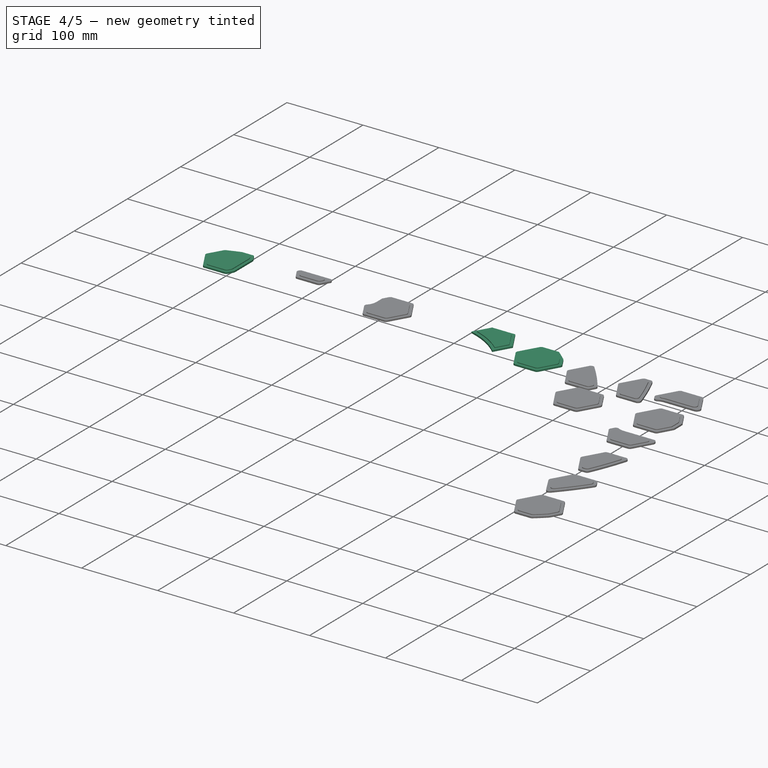
[diagram: stage 4 of 5 — iso view after this stage's code; geometry added in this stage tinted green]
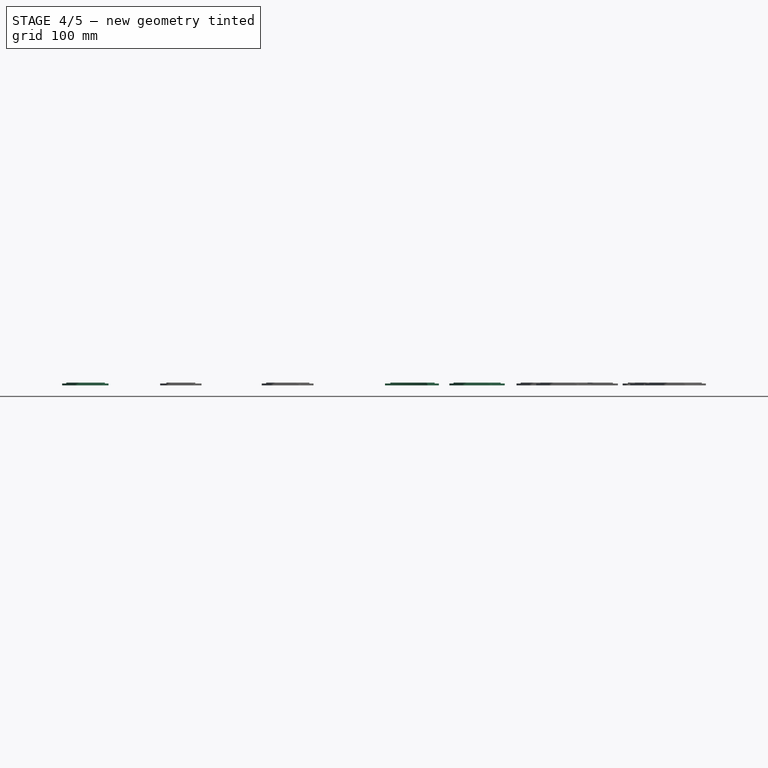
[diagram: stage 4 of 5 — front view after this stage's code; geometry added in this stage tinted green]
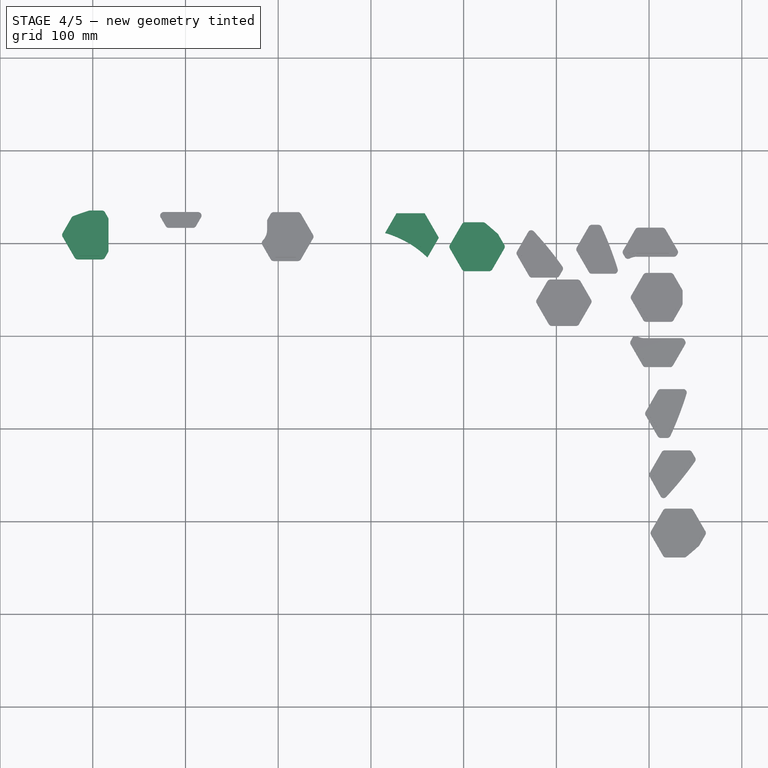
[diagram: stage 4 of 5 — top view after this stage's code; geometry added in this stage tinted green]
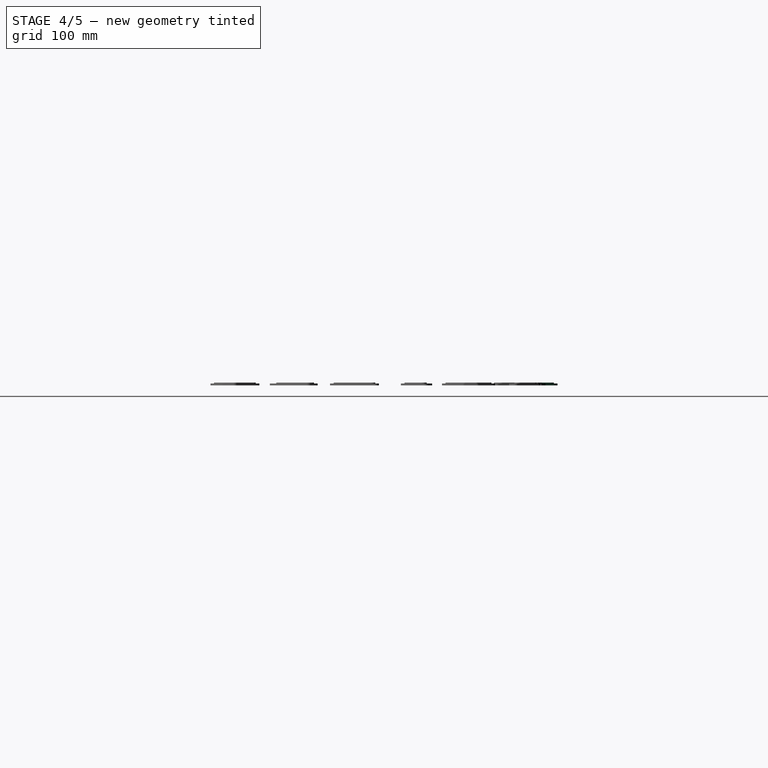
[diagram: stage 4 of 5 — right view after this stage's code; geometry added in this stage tinted green]
FEATURE [Sketcher::SketchObject] Sketch006
  sketch-geometry (23):
    g0: LineSegment StartX=-272.459 StartY=32.455 StartZ=0 EndX=-284.762 EndY=11.1447 EndZ=0
    g1: LineSegment StartX=-284.762 StartY=11.1447 StartZ=0 EndX=-284.25 EndY=11.0037 EndZ=0
    g2: LineSegment StartX=-284.25 StartY=11.0037 StartZ=0 EndX=-281.467 EndY=10.1564 EndZ=0
    g3: LineSegment StartX=-281.467 StartY=10.1564 StartZ=0 EndX=-278.69 EndY=9.22825 EndZ=0
    g4: LineSegment StartX=-278.69 StartY=9.22825 StartZ=0 EndX=-275.922 EndY=8.21884 EndZ=0
    g5: LineSegment StartX=-275.922 StartY=8.21884 StartZ=0 EndX=-273.166 EndY=7.12785 EndZ=0
    g6: LineSegment StartX=-273.166 StartY=7.12785 StartZ=0 EndX=-270.426 EndY=5.95517 EndZ=0
    g7: LineSegment StartX=-270.426 StartY=5.95517 StartZ=0 EndX=-267.706 EndY=4.70089 EndZ=0
    g8: LineSegment StartX=-267.706 StartY=4.70089 StartZ=0 EndX=-265.009 EndY=3.36527 EndZ=0
    g9: LineSegment StartX=-265.009 StartY=3.36527 StartZ=0 EndX=-262.339 EndY=1.94881 EndZ=0
    g10: LineSegment StartX=-262.339 StartY=1.94881 StartZ=0 EndX=-259.698 EndY=0.452194 EndZ=0
    g11: LineSegment StartX=-259.698 StartY=0.452194 StartZ=0 EndX=-257.092 EndY=-1.1237 EndZ=0
    g12: LineSegment StartX=-257.092 StartY=-1.1237 StartZ=0 EndX=-254.522 EndY=-2.77778 EndZ=0
    g13: LineSegment StartX=-254.522 StartY=-2.77778 StartZ=0 EndX=-251.994 EndY=-4.50874 EndZ=0
    g14: LineSegment StartX=-251.994 StartY=-4.50874 StartZ=0 EndX=-249.509 EndY=-6.31508 EndZ=0
    g15: LineSegment StartX=-249.509 StartY=-6.31508 StartZ=0 EndX=-247.072 EndY=-8.19511 EndZ=0
    g16: LineSegment StartX=-247.072 StartY=-8.19511 StartZ=0 EndX=-244.685 EndY=-10.1469 EndZ=0
    g17: LineSegment StartX=-244.685 StartY=-10.1469 StartZ=0 EndX=-242.352 EndY=-12.1685 EndZ=0
    g18: LineSegment StartX=-242.352 StartY=-12.1685 StartZ=0 EndX=-240.076 EndY=-14.2575 EndZ=0
    g19: LineSegment StartX=-240.076 StartY=-14.2575 StartZ=0 EndX=-239.053 EndY=-15.2515 EndZ=0
    g20: LineSegment StartX=-239.053 StartY=-15.2515 StartZ=0 EndX=-226.747 EndY=6.06343 EndZ=0
    g21: LineSegment StartX=-226.747 StartY=6.06343 StartZ=0 EndX=-241.984 EndY=32.455 EndZ=0
    g22: LineSegment StartX=-241.984 StartY=32.455 StartZ=0 EndX=-272.459 EndY=32.455 EndZ=0
FEATURE [PartDesign::Pad] Pad006
  Length = 2
  Length2 = 100
  Sketch = -> Sketch006
  Type = 0
FEATURE [Sketcher::SketchObject] Sketch007
  Placement = pos=(0,0,2) rot=(0,0,1;0rad)
  Support = -> Pad006 [Face25]
  sketch-geometry (19):
    g0: LineSegment StartX=-252.376 StartY=0.455785 StartZ=0 EndX=-249.756 EndY=-1.33726 EndZ=0
    g1: LineSegment StartX=-249.756 StartY=-1.33726 StartZ=0 EndX=-247.182 EndY=-3.20839 EndZ=0
    g2: LineSegment StartX=-247.182 StartY=-3.20839 StartZ=0 EndX=-244.658 EndY=-5.15585 EndZ=0
    g3: LineSegment StartX=-244.658 StartY=-5.15585 StartZ=0 EndX=-242.185 EndY=-7.17768 EndZ=0
    g4: LineSegment StartX=-242.185 StartY=-7.17768 StartZ=0 EndX=-239.978 EndY=-9.09068 EndZ=0
    g5: LineSegment StartX=-239.978 StartY=-9.09068 StartZ=0 EndX=-231.228 EndY=6.06343 EndZ=0
    g6: LineSegment StartX=-231.228 StartY=6.06343 StartZ=0 EndX=-244.225 EndY=28.574 EndZ=0
    g7: LineSegment StartX=-244.225 StartY=28.574 StartZ=0 EndX=-270.218 EndY=28.574 EndZ=0
    g8: LineSegment StartX=-270.218 StartY=28.574 StartZ=0 EndX=-278.971 EndY=13.414 EndZ=0
    g9: LineSegment StartX=-278.971 StartY=13.414 StartZ=0 EndX=-277.41 EndY=12.8924 EndZ=0
    g10: LineSegment StartX=-277.41 StartY=12.8924 StartZ=0 EndX=-274.542 EndY=11.8468 EndZ=0
    g11: LineSegment StartX=-274.542 StartY=11.8468 StartZ=0 EndX=-271.688 EndY=10.7167 EndZ=0
    g12: LineSegment StartX=-271.688 StartY=10.7167 StartZ=0 EndX=-268.85 EndY=9.50196 EndZ=0
    g13: LineSegment StartX=-268.85 StartY=9.50196 StartZ=0 EndX=-266.032 EndY=8.20269 EndZ=0
    g14: LineSegment StartX=-266.032 StartY=8.20269 StartZ=0 EndX=-263.238 EndY=6.81917 EndZ=0
    g15: LineSegment StartX=-263.238 StartY=6.81917 StartZ=0 EndX=-260.472 EndY=5.35191 EndZ=0
    g16: LineSegment StartX=-260.472 StartY=5.35191 StartZ=0 EndX=-257.737 EndY=3.80161 EndZ=0
    g17: LineSegment StartX=-257.737 StartY=3.80161 StartZ=0 EndX=-255.037 EndY=2.16919 EndZ=0
    g18: LineSegment StartX=-255.037 StartY=2.16919 StartZ=0 EndX=-252.376 EndY=0.455785 EndZ=0
FEATURE [PartDesign::Pad] Pad007
  Length = 1
  Length2 = 100
  Sketch = -> Sketch007
  Type = 0
FEATURE [Sketcher::SketchObject] Sketch008
  sketch-geometry (11):
    g0: LineSegment StartX=-215.963 StartY=-3.63108 StartZ=0 EndX=-200.726 EndY=-30.0226 EndZ=0
    g1: LineSegment StartX=-200.726 StartY=-30.0226 StartZ=0 EndX=-170.252 EndY=-30.0226 EndZ=0
    g2: LineSegment StartX=-170.252 StartY=-30.0226 StartZ=0 EndX=-155.014 EndY=-3.63108 EndZ=0
    g3: LineSegment StartX=-155.014 StartY=-3.63108 StartZ=0 EndX=-162.89 EndY=10.0099 EndZ=0
    g4: LineSegment StartX=-162.89 StartY=10.0099 StartZ=0 EndX=-164.077 EndY=11.0911 EndZ=0
    g5: LineSegment StartX=-164.077 StartY=11.0911 StartZ=0 EndX=-168.417 EndY=14.9252 EndZ=0
    g6: LineSegment StartX=-168.417 StartY=14.9252 StartZ=0 EndX=-172.815 EndY=18.6897 EndZ=0
    g7: LineSegment StartX=-172.815 StartY=18.6897 StartZ=0 EndX=-177.267 EndY=22.3833 EndZ=0
    g8: LineSegment StartX=-177.267 StartY=22.3833 StartZ=0 EndX=-177.736 EndY=22.7605 EndZ=0
    g9: LineSegment StartX=-177.736 StartY=22.7605 StartZ=0 EndX=-200.726 EndY=22.7605 EndZ=0
    g10: LineSegment StartX=-200.726 StartY=22.7605 StartZ=0 EndX=-215.963 EndY=-3.63108 EndZ=0
FEATURE [PartDesign::Pad] Pad008
  Length = 2
  Length2 = 100
  Sketch = -> Sketch008
  Type = 0
FEATURE [Sketcher::SketchObject] Sketch009
  Placement = pos=(0,0,2) rot=(0,0,1;0rad)
  Support = -> Pad008 [Face13]
  sketch-geometry (10):
    g0: LineSegment StartX=-166.668 StartY=8.20211 StartZ=0 EndX=-170.964 EndY=11.9965 EndZ=0
    g1: LineSegment StartX=-170.964 StartY=11.9965 StartZ=0 EndX=-175.316 EndY=15.722 EndZ=0
    g2: LineSegment StartX=-175.316 StartY=15.722 StartZ=0 EndX=-179.122 EndY=18.8795 EndZ=0
    g3: LineSegment StartX=-179.122 StartY=18.8795 StartZ=0 EndX=-198.485 EndY=18.8795 EndZ=0
    g4: LineSegment StartX=-198.485 StartY=18.8795 StartZ=0 EndX=-211.482 EndY=-3.63108 EndZ=0
    g5: LineSegment StartX=-211.482 StartY=-3.63108 StartZ=0 EndX=-198.485 EndY=-26.1417 EndZ=0
    g6: LineSegment StartX=-198.485 StartY=-26.1417 StartZ=0 EndX=-172.492 EndY=-26.1417 EndZ=0
    g7: LineSegment StartX=-172.492 StartY=-26.1417 StartZ=0 EndX=-159.496 EndY=-3.63108 EndZ=0
    g8: LineSegment StartX=-159.496 StartY=-3.63108 StartZ=0 EndX=-165.95 EndY=7.54727 EndZ=0
    g9: LineSegment StartX=-165.95 StartY=7.54727 StartZ=0 EndX=-166.668 EndY=8.20211 EndZ=0
FEATURE [PartDesign::Pad] Pad009
  Length = 1
  Length2 = 100
  Sketch = -> Sketch009
  Type = 0
FEATURE [PartDesign::Fillet] Fillet004  label="insert9"
  Base = -> Pad009 [Edge2,Edge57,Edge55,Edge8,Edge38,Edge53,Edge59,Edge1,Edge51,Edge39,Edge37,Edge46,Edge5,Edge61]
  Radius = 3.81
FEATURE [Sketcher::SketchObject] Sketch011
  sketch-geometry (11):
    g0: LineSegment StartX=-618.433 StartY=-17.3129 StartZ=0 EndX=-587.959 EndY=-17.3129 EndZ=0
    g1: LineSegment StartX=-587.959 StartY=-17.3129 StartZ=0 EndX=-583 EndY=-8.72475 EndZ=0
    g2: LineSegment StartX=-583 StartY=-8.72475 StartZ=0 EndX=-583 EndY=26.8821 EndZ=0
    g3: LineSegment StartX=-583 StartY=26.8821 StartZ=0 EndX=-587.959 EndY=35.4703 EndZ=0
    g4: LineSegment StartX=-587.959 StartY=35.4703 StartZ=0 EndX=-603.711 EndY=35.4703 EndZ=0
    g5: LineSegment StartX=-603.711 StartY=35.4703 StartZ=0 EndX=-607.242 EndY=34.3225 EndZ=0
    g6: LineSegment StartX=-607.242 StartY=34.3225 StartZ=0 EndX=-612.447 EndY=32.5455 EndZ=0
    g7: LineSegment StartX=-612.447 StartY=32.5455 StartZ=0 EndX=-617.644 EndY=30.6858 EndZ=0
    g8: LineSegment StartX=-617.644 StartY=30.6858 StartZ=0 EndX=-622.176 EndY=28.988 EndZ=0
    g9: LineSegment StartX=-622.176 StartY=28.988 StartZ=0 EndX=-633.67 EndY=9.07868 EndZ=0
    g10: LineSegment StartX=-633.67 StartY=9.07868 StartZ=0 EndX=-618.433 EndY=-17.3129 EndZ=0
FEATURE [PartDesign::Pad] Pad010
  Length = 2
  Length2 = 100
  Sketch = -> Sketch011
  Type = 0
FEATURE [Sketcher::SketchObject] Sketch010
  Placement = pos=(0,0,2) rot=(0,0,1;0rad)
  Support = -> Pad010 [Face13]
  sketch-geometry (11):
    g0: LineSegment StartX=-619.511 StartY=25.842 StartZ=0 EndX=-629.189 EndY=9.07868 EndZ=0
    g1: LineSegment StartX=-629.189 StartY=9.07868 StartZ=0 EndX=-616.193 EndY=-13.4319 EndZ=0
    g2: LineSegment StartX=-616.193 StartY=-13.4319 StartZ=0 EndX=-590.2 EndY=-13.4319 EndZ=0
    g3: LineSegment StartX=-590.2 StartY=-13.4319 StartZ=0 EndX=-586.881 EndY=-7.68484 EndZ=0
    g4: LineSegment StartX=-586.881 StartY=-7.68484 StartZ=0 EndX=-586.881 EndY=25.8422 EndZ=0
    g5: LineSegment StartX=-586.881 StartY=25.8422 StartZ=0 EndX=-590.2 EndY=31.5893 EndZ=0
    g6: LineSegment StartX=-590.2 StartY=31.5893 StartZ=0 EndX=-603.096 EndY=31.5893 EndZ=0
    g7: LineSegment StartX=-603.096 StartY=31.5893 StartZ=0 EndX=-606.015 EndY=30.6404 EndZ=0
    g8: LineSegment StartX=-606.015 StartY=30.6404 StartZ=0 EndX=-611.166 EndY=28.8818 EndZ=0
    g9: LineSegment StartX=-611.166 StartY=28.8818 StartZ=0 EndX=-616.309 EndY=27.0414 EndZ=0
    g10: LineSegment StartX=-616.309 StartY=27.0414 StartZ=0 EndX=-619.511 EndY=25.842 EndZ=0
FEATURE [PartDesign::Pad] Pad011
  Length = 1
  Length2 = 100
  Sketch = -> Sketch010
  Type = 0
FEATURE [PartDesign::Fillet] Fillet005  label="insert2"
  Base = -> Pad011 [Edge8,Edge2,Edge50,Edge52,Edge54,Edge1,Edge5,Edge56,Edge38,Edge58,Edge47,Edge41,Edge45,Edge40,Edge39,Edge48]
  Radius = 3.81
FEATURE [Sketcher::SketchObject] Sketch013
  Placement = pos=(0,0,2) rot=(0,0,1;0rad)
  Support = -> Pad012 [Face6]
  sketch-geometry (4):
    g0: LineSegment StartX=-486.615 StartY=29.9222 StartZ=0 EndX=-523.37 EndY=29.9222 EndZ=0
    g1: LineSegment StartX=-523.37 StartY=29.9222 StartZ=0 EndX=-517.989 EndY=20.6012 EndZ=0
    g2: LineSegment StartX=-517.989 StartY=20.6012 StartZ=0 EndX=-491.996 EndY=20.6012 EndZ=0
    g3: LineSegment StartX=-491.996 StartY=20.6012 StartZ=0 EndX=-486.615 EndY=29.9222 EndZ=0
FEATURE [PartDesign::Pad] Pad013
  Length = 1
  Length2 = 100
  Sketch = -> Sketch013
  Type = 0
FEATURE [PartDesign::Fillet] Fillet006  label="insert4"
  Base = -> Pad013 [Edge1,Edge5,Edge22,Edge20,Edge2,Edge17,Edge8,Edge19]
  Radius = 3.81
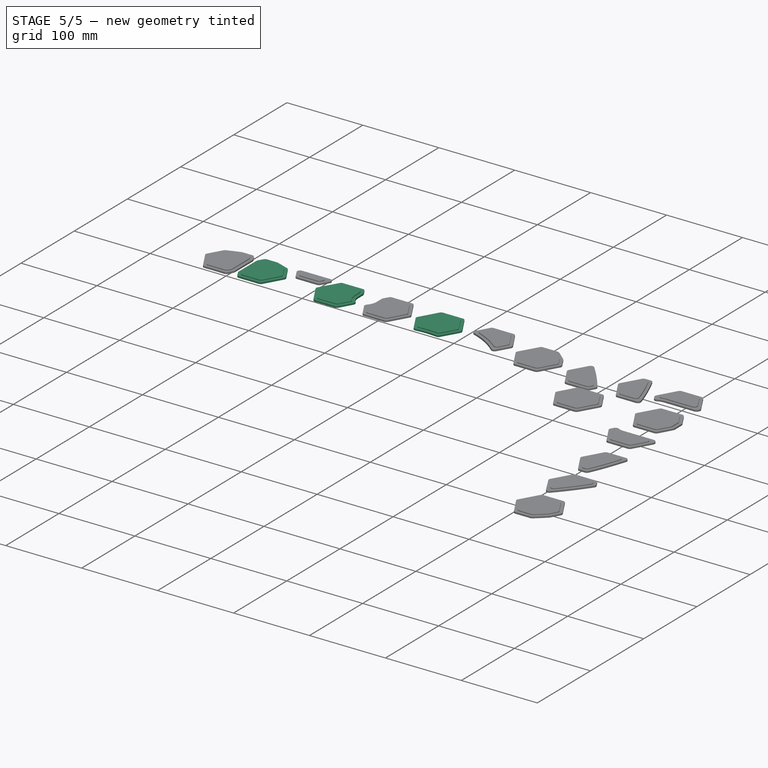
[diagram: stage 5 of 5 — iso view after this stage's code; geometry added in this stage tinted green]
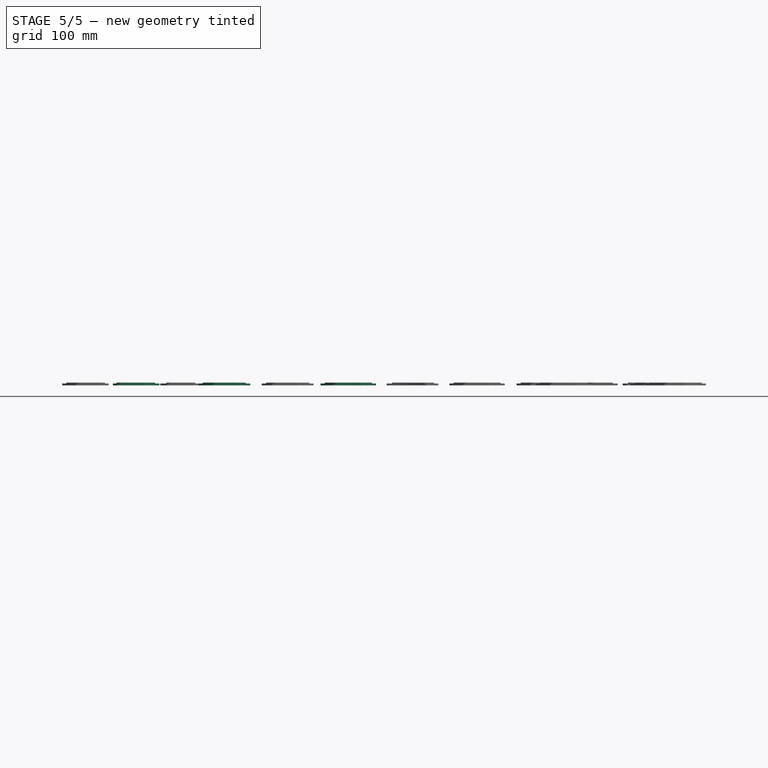
[diagram: stage 5 of 5 — front view after this stage's code; geometry added in this stage tinted green]
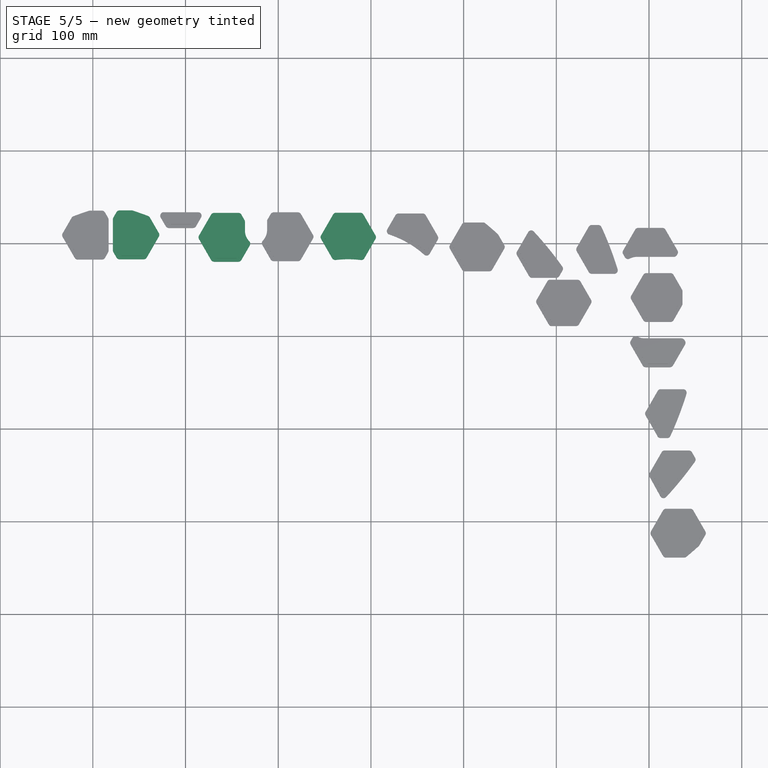
[diagram: stage 5 of 5 — top view after this stage's code; geometry added in this stage tinted green]
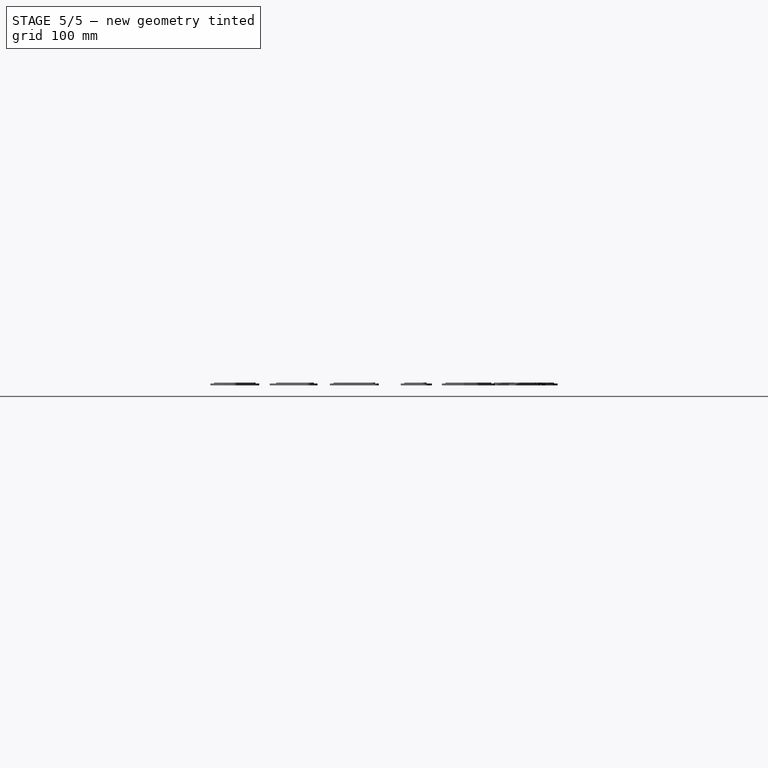
[diagram: stage 5 of 5 — right view after this stage's code; geometry added in this stage tinted green]
FEATURE [Part::Feature] Polyline
  shape: bbox 42.31 x 45.02 x 2e-07 mm, 1 faces, 0 solids (baked)
FEATURE [Part::Feature] Polyline001
  shape: bbox 51.99 x 43.28 x 2e-07 mm, 1 faces, 0 solids (baked)
FEATURE [Part::Feature] Polyline002
  shape: bbox 42.31 x 45.02 x 2e-07 mm, 1 faces, 0 solids (baked)
FEATURE [Part::Feature] Polyline003
  shape: bbox 42.42 x 43.35 x 2e-07 mm, 1 faces, 0 solids (baked)
FEATURE [Part::Feature] Polyline004
  shape: bbox 37.06 x 45.02 x 2e-07 mm, 1 faces, 0 solids (baked)
FEATURE [Part::Feature] Polyline005
  shape: bbox 37.06 x 45.02 x 2e-07 mm, 1 faces, 0 solids (baked)
FEATURE [Part::Feature] Polyline006
  shape: bbox 48.01 x 45.02 x 2e-07 mm, 1 faces, 0 solids (baked)
FEATURE [Part::Feature] Polyline007
  shape: bbox 51.99 x 45.02 x 2e-07 mm, 1 faces, 0 solids (baked)
FEATURE [Part::Feature] Polyline008
  shape: bbox 47.74 x 37.66 x 2e-07 mm, 1 faces, 0 solids (baked)
FEATURE [Part::Feature] Polyline009
  shape: bbox 48.01 x 45.02 x 2e-07 mm, 1 faces, 0 solids (baked)
FEATURE [Part::Feature] Polyline010
  shape: bbox 36.76 x 9.321 x 2e-07 mm, 1 faces, 0 solids (baked)
FEATURE [Part::Feature] Polyline011
  shape: bbox 42.42 x 43.35 x 2e-07 mm, 1 faces, 0 solids (baked)
FEATURE [Part::Feature] Polyline012
  shape: bbox 51.99 x 25.88 x 2e-07 mm, 1 faces, 0 solids (baked)
FEATURE [Part::Feature] Polyline013
  shape: bbox 51.99 x 25.88 x 2e-07 mm, 1 faces, 0 solids (baked)
FEATURE [Part::Feature] Polyline014
  shape: bbox 51.99 x 45.02 x 2e-07 mm, 1 faces, 0 solids (baked)
FEATURE [Part::Feature] Polyline015
  shape: bbox 48.17 x 45.02 x 2e-07 mm, 1 faces, 0 solids (baked)
FEATURE [Part::Feature] Polyline016
  shape: bbox 50.67 x 52.78 x 2e-07 mm, 1 faces, 0 solids (baked)
FEATURE [Part::Feature] Polyline017
  shape: bbox 50.67 x 52.78 x 2e-07 mm, 1 faces, 0 solids (baked)
FEATURE [Part::Feature] Polyline018
  shape: bbox 60.95 x 52.78 x 2e-07 mm, 1 faces, 0 solids (baked)
FEATURE [Part::Feature] Polyline019
  shape: bbox 60.95 x 51.37 x 2e-07 mm, 1 faces, 0 solids (baked)
FEATURE [Part::Feature] Polyline020
  shape: bbox 60.95 x 35.31 x 2e-07 mm, 1 faces, 0 solids (baked)
FEATURE [Part::Feature] Polyline021
  shape: bbox 46.41 x 52.78 x 2e-07 mm, 1 faces, 0 solids (baked)
FEATURE [Part::Feature] Polyline022
  shape: bbox 57.44 x 52.78 x 2e-07 mm, 1 faces, 0 solids (baked)
FEATURE [Part::Feature] Polyline023
  shape: bbox 58.02 x 47.71 x 2e-07 mm, 1 faces, 0 solids (baked)
FEATURE [Part::Feature] Polyline024
  shape: bbox 60.95 x 35.31 x 2e-07 mm, 1 faces, 0 solids (baked)
FEATURE [Part::Feature] Polyline025
  shape: bbox 56.53 x 52.78 x 2e-07 mm, 1 faces, 0 solids (baked)
FEATURE [Part::Feature] Polyline026
  shape: bbox 51.5 x 52.78 x 2e-07 mm, 1 faces, 0 solids (baked)
FEATURE [Part::Feature] Polyline027
  shape: bbox 60.95 x 52.78 x 2e-07 mm, 1 faces, 0 solids (baked)
FEATURE [Part::Feature] Polyline028
  shape: bbox 46.41 x 52.78 x 2e-07 mm, 1 faces, 0 solids (baked)
FEATURE [Part::Feature] Polyline029
  shape: bbox 51.5 x 52.78 x 2e-07 mm, 1 faces, 0 solids (baked)
FEATURE [Part::Feature] Polyline030
  shape: bbox 50.2 x 17.08 x 2e-07 mm, 1 faces, 0 solids (baked)
FEATURE [Part::Feature] Polyline031
  shape: bbox 57.44 x 52.78 x 2e-07 mm, 1 faces, 0 solids (baked)
FEATURE [App::DocumentObjectGroup] LAYER_8
  Group = -> [Polyline,Polyline001,Polyline002,Polyline003,Polyline004,Polyline005,Polyline006,Polyline007,Polyline008,Polyline009,Polyline010,Polyline011,Polyline012,Polyline013,Polyline014,Polyline015,Polyline016,Polyline017,Polyline018,Polyline019,Polyline020,Polyline021,Polyline022,Polyline023,Polyline024,Polyline025,Polyline026,Polyline027,Polyline028,Polyline029,Polyline030,Polyline031]
FEATURE [App::DocumentObjectGroup] all_odd_inserts
  Group = -> [LAYER_8]
FEATURE [Sketcher::SketchObject] Sketch
  sketch-geometry (11):
    g0: LineSegment StartX=-548.889 StartY=32.8548 StartZ=0 EndX=-554.094 EndY=34.6318 EndZ=0
    g1: LineSegment StartX=-554.094 StartY=34.6318 StartZ=0 EndX=-557.625 EndY=35.7796 EndZ=0
    g2: LineSegment StartX=-557.625 StartY=35.7796 StartZ=0 EndX=-573.377 EndY=35.7796 EndZ=0
    g3: LineSegment StartX=-573.377 StartY=35.7796 StartZ=0 EndX=-578.335 EndY=27.1915 EndZ=0
    g4: LineSegment StartX=-578.335 StartY=27.1915 StartZ=0 EndX=-578.335 EndY=-8.4154 EndZ=0
    g5: LineSegment StartX=-578.335 StartY=-8.4154 StartZ=0 EndX=-573.377 EndY=-17.0035 EndZ=0
    g6: LineSegment StartX=-573.377 StartY=-17.0035 StartZ=0 EndX=-542.903 EndY=-17.0035 EndZ=0
    g7: LineSegment StartX=-542.903 StartY=-17.0035 StartZ=0 EndX=-527.666 EndY=9.38804 EndZ=0
    g8: LineSegment StartX=-527.666 StartY=9.38804 StartZ=0 EndX=-539.16 EndY=29.2973 EndZ=0
    g9: LineSegment StartX=-539.16 StartY=29.2973 StartZ=0 EndX=-543.692 EndY=30.9952 EndZ=0
    g10: LineSegment StartX=-543.692 StartY=30.9952 StartZ=0 EndX=-548.889 EndY=32.8548 EndZ=0
FEATURE [PartDesign::Pad] Pad
  Length = 2
  Length2 = 100
  Sketch = -> Sketch
  Type = 0
FEATURE [Sketcher::SketchObject] Sketch001
  Placement = pos=(0,0,2) rot=(0,0,1;0rad)
  Support = -> Pad [Face13]
  sketch-geometry (11):
    g0: LineSegment StartX=-571.136 StartY=31.8986 StartZ=0 EndX=-574.454 EndY=26.1516 EndZ=0
    g1: LineSegment StartX=-574.454 StartY=26.1516 StartZ=0 EndX=-574.454 EndY=-7.37549 EndZ=0
    g2: LineSegment StartX=-574.454 StartY=-7.37549 StartZ=0 EndX=-571.136 EndY=-13.1225 EndZ=0
    g3: LineSegment StartX=-571.136 StartY=-13.1225 StartZ=0 EndX=-545.143 EndY=-13.1225 EndZ=0
    g4: LineSegment StartX=-545.143 StartY=-13.1225 StartZ=0 EndX=-532.147 EndY=9.38804 EndZ=0
    g5: LineSegment StartX=-532.147 StartY=9.38804 StartZ=0 EndX=-541.825 EndY=26.1513 EndZ=0
    g6: LineSegment StartX=-541.825 StartY=26.1513 StartZ=0 EndX=-545.027 EndY=27.3508 EndZ=0
    g7: LineSegment StartX=-545.027 StartY=27.3508 StartZ=0 EndX=-550.169 EndY=29.1912 EndZ=0
    g8: LineSegment StartX=-550.169 StartY=29.1912 StartZ=0 EndX=-555.321 EndY=30.9497 EndZ=0
    g9: LineSegment StartX=-555.321 StartY=30.9497 StartZ=0 EndX=-558.24 EndY=31.8986 EndZ=0
    g10: LineSegment StartX=-558.24 StartY=31.8986 StartZ=0 EndX=-571.136 EndY=31.8986 EndZ=0
FEATURE [PartDesign::Pad] Pad001
  Length = 1
  Length2 = 100
  Sketch = -> Sketch001
  Type = 0
FEATURE [PartDesign::Fillet] Fillet  label="insert3"
  Base = -> Pad001 [Edge42,Edge41,Edge64,Edge62,Edge60,Edge43,Edge44,Edge58,Edge40,Edge47,Edge39,Edge45,Edge8,Edge48,Edge56,Edge38]
  Radius = 3.81
FEATURE [Sketcher::SketchObject] Sketch003
  sketch-geometry (8):
    g0: LineSegment StartX=-435.887 StartY=13.9959 StartZ=0 EndX=-435.887 EndY=24.504 EndZ=0
    g1: LineSegment StartX=-435.887 StartY=24.504 StartZ=0 EndX=-440.846 EndY=33.0921 EndZ=0
    g2: LineSegment StartX=-440.846 StartY=33.0921 StartZ=0 EndX=-471.32 EndY=33.0921 EndZ=0
    g3: LineSegment StartX=-471.32 StartY=33.0921 StartZ=0 EndX=-486.557 EndY=6.70053 EndZ=0
    g4: LineSegment StartX=-486.557 StartY=6.70053 StartZ=0 EndX=-471.32 EndY=-19.691 EndZ=0
    g5: LineSegment StartX=-471.32 StartY=-19.691 StartZ=0 EndX=-440.846 EndY=-19.691 EndZ=0
    g6: LineSegment StartX=-440.846 StartY=-19.691 StartZ=0 EndX=-429.116 EndY=0.624623 EndZ=0
    g7: ArcOfCircle CenterX=-419.288 CenterY=14.0016 CenterZ=0 NormalX=0 NormalY=0 NormalZ=1 Radius=16.5996 StartAngle=3.14194 EndAngle=4.07872
FEATURE [PartDesign::Pad] Pad002
  Length = 2
  Length2 = 100
  Sketch = -> Sketch003
  Type = 0
FEATURE [Sketcher::SketchObject] Sketch002
  Placement = pos=(0,0,2) rot=(0,0,1;0rad)
  Support = -> Pad002 [Face10]
  sketch-geometry (9):
    g0: ArcOfCircle CenterX=-419.29 CenterY=14.0006 CenterZ=0 NormalX=0 NormalY=0 NormalZ=1 Radius=20.4787 StartAngle=3.1419 EndAngle=3.90656
    g1: LineSegment StartX=-439.768 StartY=13.9943 StartZ=0 EndX=-439.768 EndY=13.9959 EndZ=0
    g2: LineSegment StartX=-439.768 StartY=13.9959 StartZ=0 EndX=-439.768 EndY=23.4641 EndZ=0
    g3: LineSegment StartX=-439.768 StartY=23.4641 StartZ=0 EndX=-443.086 EndY=29.2111 EndZ=0
    g4: LineSegment StartX=-443.086 StartY=29.2111 StartZ=0 EndX=-469.079 EndY=29.2111 EndZ=0
    g5: LineSegment StartX=-469.079 StartY=29.2111 StartZ=0 EndX=-482.076 EndY=6.70053 EndZ=0
    g6: LineSegment StartX=-482.076 StartY=6.70053 StartZ=0 EndX=-469.079 EndY=-15.81 EndZ=0
    g7: LineSegment StartX=-469.079 StartY=-15.81 StartZ=0 EndX=-443.086 EndY=-15.81 EndZ=0
    g8: LineSegment StartX=-443.086 StartY=-15.81 StartZ=0 EndX=-434.063 EndY=-0.18121 EndZ=0
FEATURE [PartDesign::Pad] Pad003
  Length = 1
  Length2 = 100
  Sketch = -> Sketch002
  Type = 0
FEATURE [PartDesign::Fillet] Fillet001  label="insert5"
  Base = -> Pad003 [Edge5,Edge50,Edge2,Edge43,Edge41,Edge8,Edge31,Edge39,Edge37,Edge32,Edge33,Edge34,Edge30,Edge36]
  Radius = 3.81
FEATURE [Sketcher::SketchObject] Sketch004
  sketch-geometry (7):
    g0: LineSegment StartX=-308.383 StartY=-18.1149 StartZ=0 EndX=-293.963 EndY=6.861 EndZ=0
    g1: LineSegment StartX=-293.963 StartY=6.861 StartZ=0 EndX=-309.201 EndY=33.2526 EndZ=0
    g2: LineSegment StartX=-309.201 StartY=33.2526 StartZ=0 EndX=-339.675 EndY=33.2526 EndZ=0
    g3: LineSegment StartX=-339.675 StartY=33.2526 StartZ=0 EndX=-354.912 EndY=6.861 EndZ=0
    g4: LineSegment StartX=-354.912 StartY=6.861 StartZ=0 EndX=-340.492 EndY=-18.1149 EndZ=0
    g5: ArcOfCircle CenterX=-324.44 CenterY=-125.096 CenterZ=0 NormalX=0 NormalY=0 NormalZ=1 Radius=108.179 StartAngle=1.57078 EndAngle=1.71973
    g6: ArcOfCircle CenterX=-324.439 CenterY=-125.146 CenterZ=0 NormalX=0 NormalY=0 NormalZ=1 Radius=108.229 StartAngle=1.42189 EndAngle=1.57078
FEATURE [PartDesign::Pad] Pad004
  Length = 2
  Length2 = 100
  Sketch = -> Sketch004
  Type = 0
FEATURE [Sketcher::SketchObject] Sketch005
  Placement = pos=(0,0,2) rot=(0,0,1;0rad)
  Support = -> Pad004 [Face9]
  sketch-geometry (7):
    g0: LineSegment StartX=-310.439 StartY=-13.9131 StartZ=0 EndX=-298.445 EndY=6.861 EndZ=0
    g1: LineSegment StartX=-298.445 StartY=6.861 StartZ=0 EndX=-311.441 EndY=29.3716 EndZ=0
    g2: LineSegment StartX=-311.441 StartY=29.3716 StartZ=0 EndX=-337.434 EndY=29.3716 EndZ=0
    g3: LineSegment StartX=-337.434 StartY=29.3716 StartZ=0 EndX=-350.431 EndY=6.861 EndZ=0
    g4: LineSegment StartX=-350.431 StartY=6.861 StartZ=0 EndX=-338.437 EndY=-13.9131 EndZ=0
    g5: ArcOfCircle CenterX=-324.458 CenterY=-124.904 CenterZ=0 NormalX=0 NormalY=0 NormalZ=1 Radius=111.867 StartAngle=1.57062 EndAngle=1.69608
    g6: ArcOfCircle CenterX=-324.445 CenterY=-125.341 CenterZ=0 NormalX=0 NormalY=0 NormalZ=1 Radius=112.304 StartAngle=1.44575 EndAngle=1.57073
FEATURE [PartDesign::Pad] Pad005
  Length = 1
  Length2 = 100
  Sketch = -> Sketch005
  Type = 0
FEATURE [PartDesign::Fillet] Fillet002  label="insert7"
  Base = -> Pad005 [Edge35,Edge26,Edge1,Edge29,Edge36,Edge28,Edge31,Edge2,Edge8,Edge40,Edge27,Edge38]
  Radius = 3.81
FEATURE [PartDesign::Fillet] Fillet003  label="insert8"
  Base = -> Pad007 [Edge102,Edge110,Edge88,Edge2,Edge108,Edge70,Edge106,Edge5,Edge1,Edge104]
  Radius = 3.81
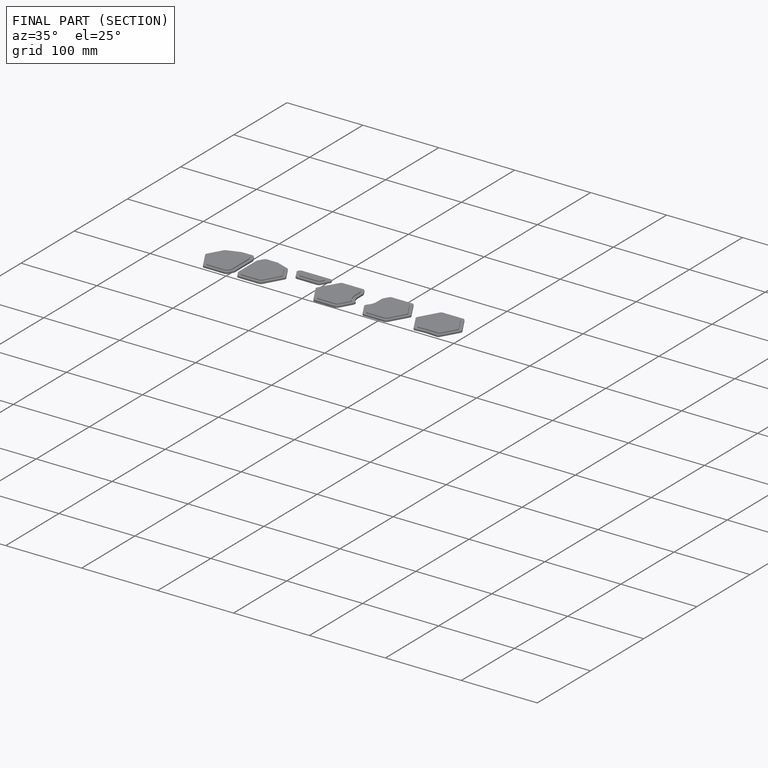
[diagram: finished part — half-section view (interior)]
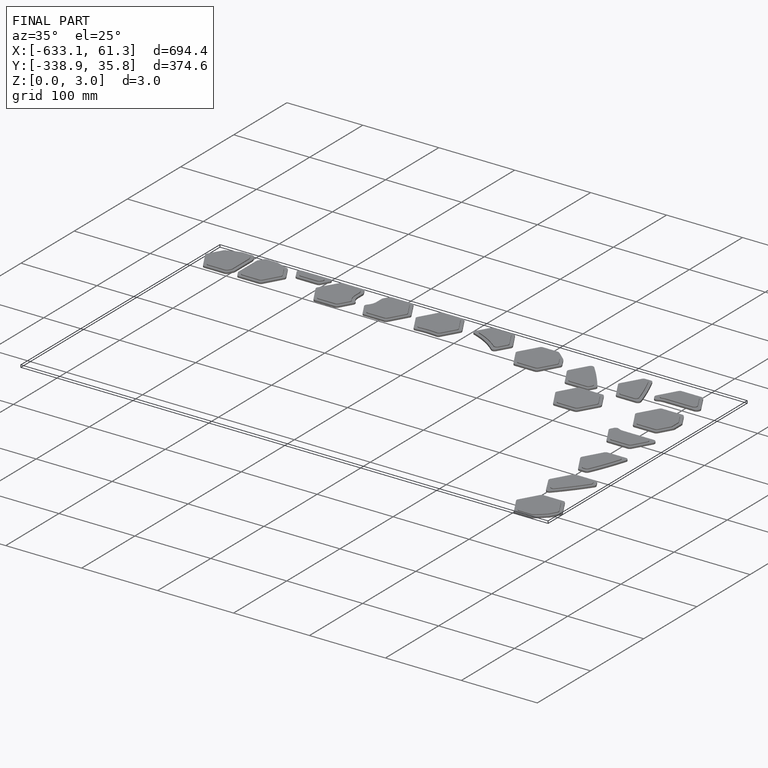
[diagram: finished part — iso view with bounding-box wireframe]
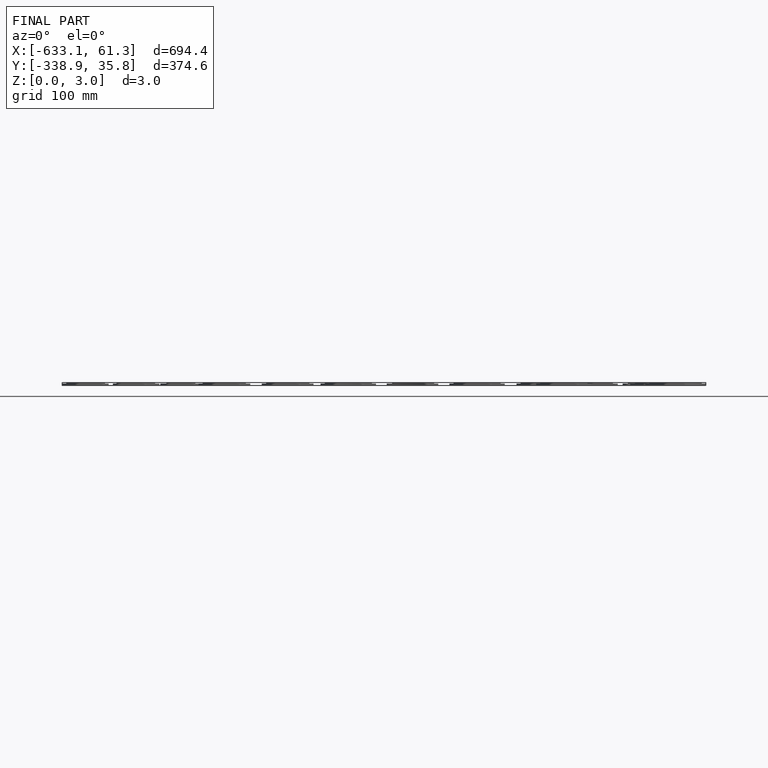
[diagram: finished part — front view with bounding-box wireframe]
